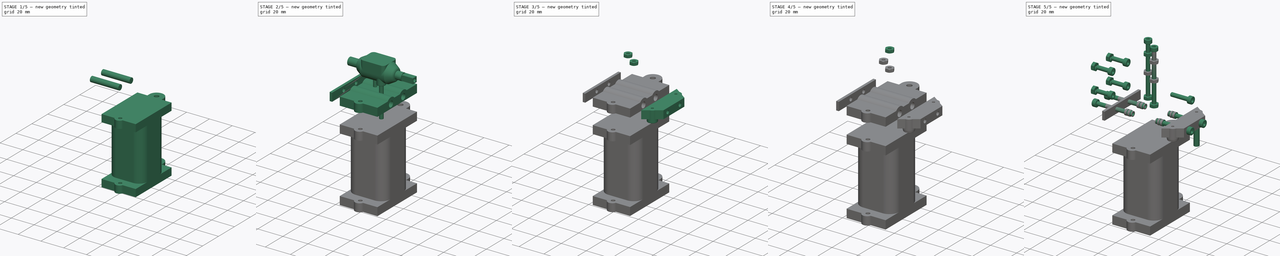
[diagram: build sequence overview — one tinted view per stage of 5, left to right]
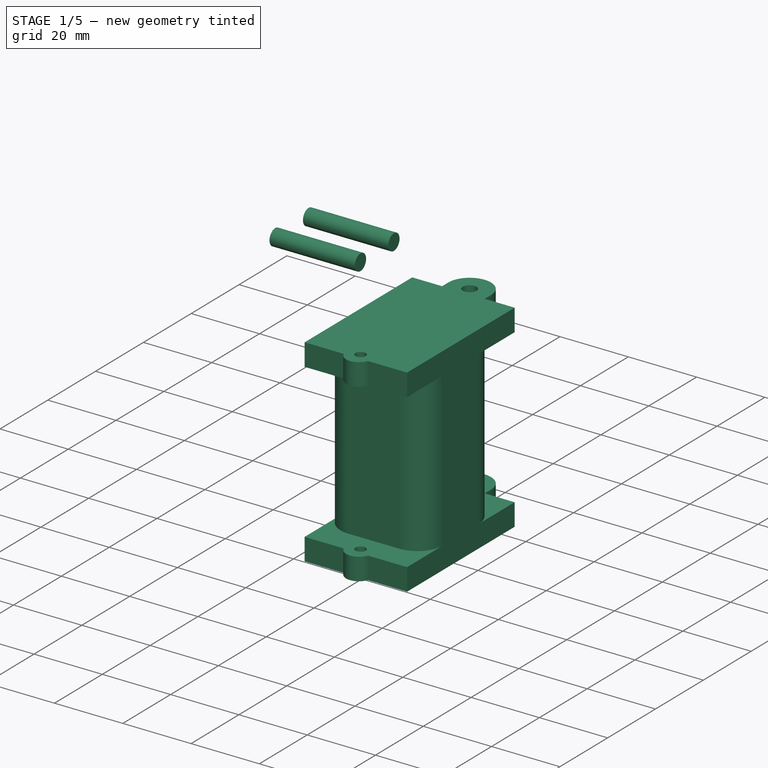
[diagram: stage 1 of 5 — iso view after this stage's code; geometry added in this stage tinted green]
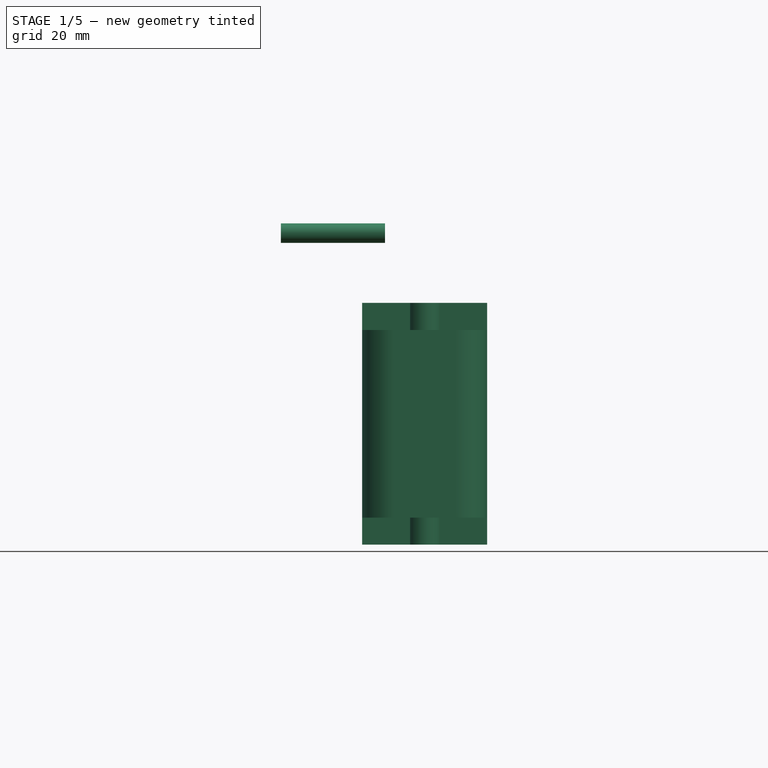
[diagram: stage 1 of 5 — front view after this stage's code; geometry added in this stage tinted green]
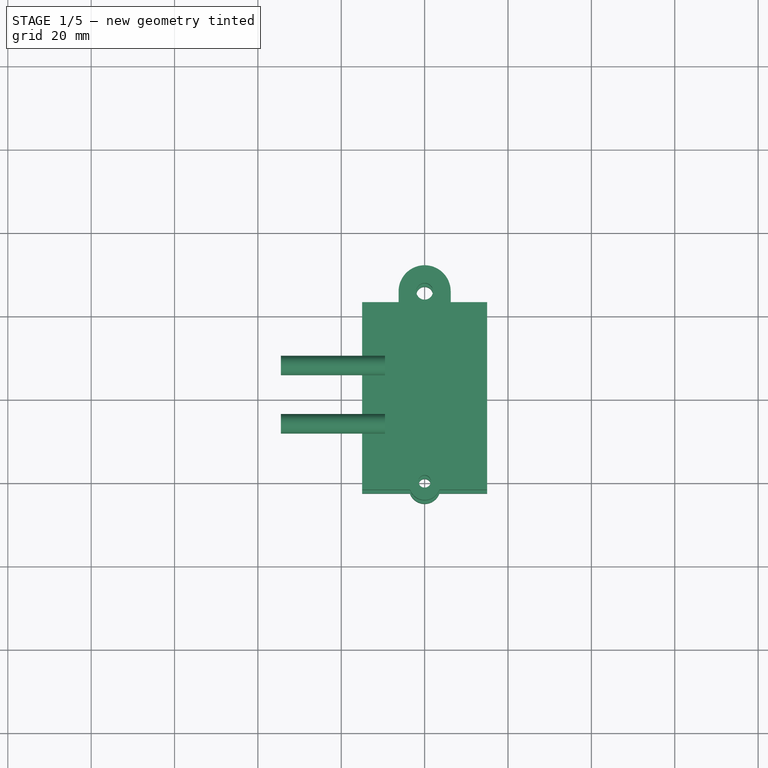
[diagram: stage 1 of 5 — top view after this stage's code; geometry added in this stage tinted green]
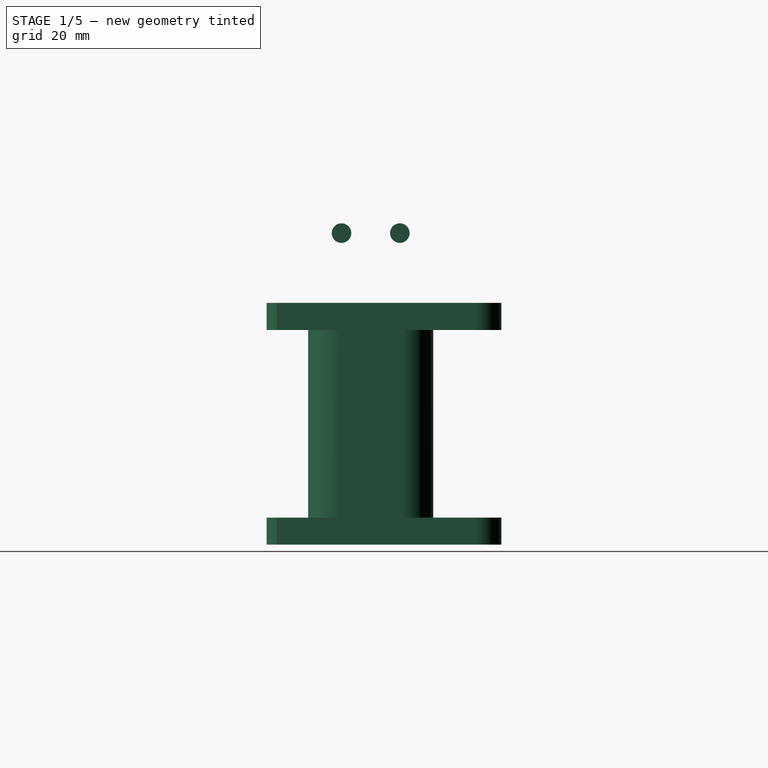
[diagram: stage 1 of 5 — right view after this stage's code; geometry added in this stage tinted green]
FCSTD DOCUMENT  (FreeCAD 0.20R29410 (Git))
Label: v2 boden actuator 
License: All rights reserved
LicenseURL: http://en.wikipedia.org/wiki/All_rights_reserved
objects: Sketcher::SketchObject×45, Part::Extrusion×39, Part::FeaturePython×31, Part::MultiFuse×17, Part::Cut×13, Part::Fillet×6, Part::Revolution×5, Part::Mirroring×4, App::DocumentObjectGroup×4, Part::Cylinder×1, Part::Feature×1
note: 162 computed .brp shape members not serialized (recipe doc carries the construction recipe); baked Part::Feature solids carry a one-line shape summary decoded from their .brp

FEATURE [Part::FeaturePython] Tube  label="686-2RS bearing"  # WARN: FeaturePython — macro-defined, semantics opaque (R4)
  AttacherType = Attacher::AttachEngine3D
  Height = 5
  InnerRadius = 3
  OuterRadius = 6.5
  Placement = pos=(-15,0,0) rot=(0,-1,0;1.5708rad)
FEATURE [Part::FeaturePython] Tube001  label="686-2RS bearing001"  # WARN: FeaturePython — macro-defined, semantics opaque (R4)
  AttacherType = Attacher::AttachEngine3D
  Height = 5
  InnerRadius = 3
  OuterRadius = 6.5
  Placement = pos=(20,0,0) rot=(0,-1,0;1.5708rad)
FEATURE [Sketcher::SketchObject] Sketch
  FullyConstrained = true
  MapMode = 45
  Placement = pos=(1.7e-15,1e-16,-1.3e-15) rot=(0.57735,0.57735,0.57735;2.0944rad)
  Support = -> [Tube001,Tube]
  sketch-geometry (7):
    g0: Circle CenterX=0 CenterY=0 CenterZ=0 NormalX=0 NormalY=0 NormalZ=1 AngleXU=0 Radius=6.5
    g1: ArcOfCircle CenterX=0 CenterY=0 CenterZ=0 NormalX=0 NormalY=0 NormalZ=1 AngleXU=0 Radius=10 StartAngle=0 EndAngle=3.14159
    g2: LineSegment StartX=-10 StartY=1.2e-15 StartZ=0 EndX=-10 EndY=-10 EndZ=0
    g3: LineSegment StartX=-15 StartY=-15 StartZ=0 EndX=15 EndY=-15 EndZ=0
    g4: LineSegment StartX=10 StartY=0 StartZ=0 EndX=10 EndY=-10 EndZ=0
    g5: LineSegment StartX=-15 StartY=-15 StartZ=0 EndX=-10 EndY=-10 EndZ=0
    g6: LineSegment StartX=15 StartY=-15 StartZ=0 EndX=10 EndY=-10 EndZ=0
  constraints (20):
    c: Coincident(g0,g-1)
    c: Diameter(g0) = 13
    c: Coincident(g1,g0)
    c: PointOnObject(g1,g-1)
    c: PointOnObject(g1,g-1)
    c: Coincident(g2,g1)
    c: Vertical(g2)
    c: Horizontal(g3)
    c: Coincident(g4,g1)
    c: Vertical(g4)
    c: Diameter(g1) = 20
    c: DistanceY(g3) = -15
    c: Coincident(g5,g3)
    c: Coincident(g5,g2)
    c: Coincident(g6,g3)
    c: Coincident(g6,g4)
    c: Equal(g6,g5)
    c: Angle(g3,g5) = 0.785398
    c: DistanceY(g5,g5) = 5
    c: DistanceY(g6,g6) = 5
FEATURE [Part::Extrusion] Extrude
  Base = -> Sketch
  Dir = (1,0,0)
  DirMode = 2
  FaceMakerClass = Part::FaceMakerBullseye
  LengthFwd = 7.5
  LengthRev = 0
  Placement = pos=(15,0,0) rot=(0,0,1;0rad)
  Solid = true
  Symmetric = false
FEATURE [Sketcher::SketchObject] Sketch001
  FullyConstrained = true
  MapMode = 45
  Placement = pos=(1.7e-15,1e-16,-1.3e-15) rot=(0.57735,0.57735,0.57735;2.0944rad)
  Support = -> [Tube001,Tube]
  sketch-geometry (7):
    g0: Circle CenterX=0 CenterY=0 CenterZ=0 NormalX=0 NormalY=0 NormalZ=1 AngleXU=0 Radius=6.5
    g1: ArcOfCircle CenterX=0 CenterY=0 CenterZ=0 NormalX=0 NormalY=0 NormalZ=1 AngleXU=0 Radius=10 StartAngle=0 EndAngle=3.14159
    g2: LineSegment StartX=-10 StartY=1.2e-15 StartZ=0 EndX=-10 EndY=-10 EndZ=0
    g3: LineSegment StartX=-15 StartY=-15 StartZ=0 EndX=15 EndY=-15 EndZ=0
    g4: LineSegment StartX=10 StartY=0 StartZ=0 EndX=10 EndY=-10 EndZ=0
    g5: LineSegment StartX=-15 StartY=-15 StartZ=0 EndX=-10 EndY=-10 EndZ=0
    g6: LineSegment StartX=10 StartY=-10 StartZ=0 EndX=15 EndY=-15 EndZ=0
  constraints (20):
    c: Coincident(g0,g-1)
    c: Diameter(g0) = 13
    c: Coincident(g1,g0)
    c: PointOnObject(g1,g-1)
    c: PointOnObject(g1,g-1)
    c: Coincident(g2,g1)
    c: Vertical(g2)
    c: Horizontal(g3)
    c: Coincident(g4,g1)
    c: Vertical(g4)
    c: Diameter(g1) = 20
    c: DistanceY(g3) = -15
    c: Coincident(g5,g3)
    c: Coincident(g5,g2)
    c: Coincident(g6,g4)
    c: Coincident(g6,g3)
    c: Equal(g6,g5)
    c: Angle(g3,g5) = 0.785398
    c: Angle(g6,g3) = 0.785398
    c: DistanceY(g6,g6) = 5
FEATURE [Part::Extrusion] Extrude001
  Base = -> Sketch001
  Dir = (1,0,0)
  DirMode = 2
  FaceMakerClass = Part::FaceMakerBullseye
  LengthFwd = 0
  LengthRev = 7.5
  Placement = pos=(-15,0,0) rot=(0,0,1;0rad)
  Solid = true
  Symmetric = false
FEATURE [Part::FeaturePython] Tube002  # WARN: FeaturePython — macro-defined, semantics opaque (R4)
  AttacherType = Attacher::AttachEngine3D
  Height = 2.5
  InnerRadius = 5
  OuterRadius = 6.5
  Placement = pos=(20,0,0) rot=(0,1,0;1.5708rad)
FEATURE [Part::FeaturePython] Tube003  # WARN: FeaturePython — macro-defined, semantics opaque (R4)
  AttacherType = Attacher::AttachEngine3D
  Height = 2.5
  InnerRadius = 5
  OuterRadius = 6.5
  Placement = pos=(-22.5,0,0) rot=(0,1,0;1.5708rad)
FEATURE [Part::MultiFuse] Fusion001
  Shapes = -> [Tube003,Extrude001]
FEATURE [Part::MultiFuse] Fusion002
  Shapes = -> [Tube002,Extrude]
FEATURE [Sketcher::SketchObject] Sketch014
  ExternalGeometry = -> [Fusion001]
  FullyConstrained = false
  MapMode = 5
  Placement = pos=(0,0,-15) rot=(1,0,0;3.14159rad)
  Support = -> [Fusion001]
  sketch-geometry (6):
    g0: LineSegment StartX=-22.5 StartY=20.3994 StartZ=0 EndX=-22.5 EndY=-20.3994 EndZ=0
    g1: LineSegment StartX=-15 StartY=-22.5 StartZ=0 EndX=-15 EndY=22.5 EndZ=0
    g2: LineSegment StartX=-15 StartY=-22.5 StartZ=0 EndX=-19.5 EndY=-22.5 EndZ=0
    g3: LineSegment StartX=-19.5 StartY=-22.5 StartZ=0 EndX=-22.5 EndY=-20.3994 EndZ=0
    g4: LineSegment StartX=-22.5 StartY=20.3994 StartZ=0 EndX=-19.5 EndY=22.5 EndZ=0
    g5: LineSegment StartX=-15 StartY=22.5 StartZ=0 EndX=-19.5 EndY=22.5 EndZ=0
  constraints (17):
    c: PointOnObject(g0,g-5)
    c: Vertical(g0)
    c: PointOnObject(g1,g-6)
    c: Vertical(g1)
    c: PointOnObject(g-3,g1)
    c: DistanceY(g1,g-3) = 7.5
    c: PointOnObject(g-4,g0)
    c: DistanceY(g-4,g0) = 5.39938
    c: PointOnObject(g0,g-7)
    c: Coincident(g2,g1)
    c: Coincident(g2,g-7)
    c: Coincident(g3,g2)
    c: Coincident(g3,g0)
    c: Coincident(g4,g0)
    c: Coincident(g4,g-6)
    c: Coincident(g5,g1)
    c: Coincident(g4,g5)
FEATURE [Part::Extrusion] Extrude007
  Base = -> Sketch014
  Dir = (0,0,-1)
  DirMode = 2
  FaceMakerClass = Part::FaceMakerBullseye
  LengthFwd = 6.5
  LengthRev = 0
  Solid = true
  Symmetric = false
FEATURE [Sketcher::SketchObject] Sketch015
  ExternalGeometry = -> [Fusion001]
  FullyConstrained = false
  MapMode = 5
  Placement = pos=(0,0,-15) rot=(1,0,0;3.14159rad)
  Support = -> [Fusion001]
  sketch-geometry (6):
    g0: LineSegment StartX=-22.5 StartY=20.3994 StartZ=0 EndX=-22.5 EndY=-20.3994 EndZ=0
    g1: LineSegment StartX=-15 StartY=-22.5 StartZ=0 EndX=-15 EndY=22.5 EndZ=0
    g2: LineSegment StartX=-15 StartY=-22.5 StartZ=0 EndX=-19.5 EndY=-22.5 EndZ=0
    g3: LineSegment StartX=-19.5 StartY=-22.5 StartZ=0 EndX=-22.5 EndY=-20.3994 EndZ=0
    g4: LineSegment StartX=-22.5 StartY=20.3994 StartZ=0 EndX=-19.5 EndY=22.5 EndZ=0
    g5: LineSegment StartX=-15 StartY=22.5 StartZ=0 EndX=-19.5 EndY=22.5 EndZ=0
  constraints (17):
    c: PointOnObject(g0,g-5)
    c: Vertical(g0)
    c: PointOnObject(g1,g-6)
    c: Vertical(g1)
    c: PointOnObject(g-3,g1)
    c: DistanceY(g1,g-3) = 7.5
    c: PointOnObject(g-4,g0)
    c: DistanceY(g-4,g0) = 5.39938
    c: PointOnObject(g0,g-7)
    c: Coincident(g2,g1)
    c: Coincident(g2,g-7)
    c: Coincident(g3,g2)
    c: Coincident(g3,g0)
    c: Coincident(g4,g0)
    c: Coincident(g4,g-6)
    c: Coincident(g5,g1)
    c: Coincident(g4,g5)
FEATURE [Part::Extrusion] Extrude008
  Base = -> Sketch015
  Dir = (0,0,-1)
  DirMode = 2
  FaceMakerClass = Part::FaceMakerBullseye
  LengthFwd = 6.5
  LengthRev = 0
  Solid = true
  Symmetric = false
FEATURE [Part::Mirroring] Part__Mirroring  label="Extrude008 (Mirror #1)"
  Base = (0,0,0)
  Normal = (1,0,0)
  Source = -> Extrude008
FEATURE [Sketcher::SketchObject] Sketch023
  FullyConstrained = true
  MapMode = 5
  Placement = pos=(34.5,0,-8e-15) rot=(0.57735,0.57735,0.57735;2.0944rad)
  sketch-geometry (9):
    g0: LineSegment StartX=12 StartY=-21.5 StartZ=0 EndX=12 EndY=-15 EndZ=0
    g1: LineSegment StartX=12 StartY=-15 StartZ=0 EndX=-12 EndY=-15 EndZ=0
    g2: LineSegment StartX=-12 StartY=-15 StartZ=0 EndX=-12 EndY=-21.5 EndZ=0
    g3: LineSegment StartX=-12 StartY=-21.5 StartZ=0 EndX=12 EndY=-21.5 EndZ=0
    g4: GeomPoint X=0 Y=-18.25 Z=0
    g5: LineSegment StartX=0 StartY=-18.25 StartZ=0 EndX=-7 EndY=-18.25 EndZ=0
    g6: LineSegment StartX=0 StartY=-18.25 StartZ=0 EndX=7 EndY=-18.25 EndZ=0
    g7: Circle CenterX=-7 CenterY=-18.25 CenterZ=0 NormalX=0 NormalY=0 NormalZ=1 AngleXU=0 Radius=1.5
    g8: Circle CenterX=7 CenterY=-18.25 CenterZ=0 NormalX=0 NormalY=0 NormalZ=1 AngleXU=0 Radius=1.5
  constraints (23):
    c: Coincident(g0,g1)
    c: Coincident(g1,g2)
    c: Coincident(g2,g3)
    c: Coincident(g3,g0)
    c: Horizontal(g1)
    c: Horizontal(g3)
    c: Vertical(g0)
    c: Vertical(g2)
    c: Symmetric(g1,g0,g4)
    c: Coincident(g5,g4)
    c: Horizontal(g5)
    c: Coincident(g6,g4)
    c: Horizontal(g6)
    c: Coincident(g7,g5)
    c: Coincident(g8,g6)
    c: Equal(g6,g5)
    c: Equal(g7,g8)
    c: Diameter(g7) = 3
    c: DistanceX(g8,g0) = 5
    c: DistanceY(g0,g0) = 6.5
    c: PointOnObject(g4,g-2)
    c: DistanceY(g0) = -15
    c: DistanceX(g6,g6) = 7
FEATURE [Part::Extrusion] Extrude015
  Base = -> Sketch023
  Dir = (1,0,0)
  DirMode = 2
  FaceMakerClass = Part::FaceMakerBullseye
  LengthFwd = 0
  LengthRev = 100
  Solid = true
  Symmetric = false
FEATURE [Part::Cut] Cut004
  Base = -> Part__Mirroring
  Tool = -> Extrude015
FEATURE [Sketcher::SketchObject] Sketch024
  FullyConstrained = true
  MapMode = 5
  Placement = pos=(34.5,0,-8e-15) rot=(0.57735,0.57735,0.57735;2.0944rad)
  sketch-geometry (9):
    g0: LineSegment StartX=12 StartY=-21.5 StartZ=0 EndX=12 EndY=-15 EndZ=0
    g1: LineSegment StartX=12 StartY=-15 StartZ=0 EndX=-12 EndY=-15 EndZ=0
    g2: LineSegment StartX=-12 StartY=-15 StartZ=0 EndX=-12 EndY=-21.5 EndZ=0
    g3: LineSegment StartX=-12 StartY=-21.5 StartZ=0 EndX=12 EndY=-21.5 EndZ=0
    g4: GeomPoint X=0 Y=-18.25 Z=0
    g5: LineSegment StartX=0 StartY=-18.25 StartZ=0 EndX=-7 EndY=-18.25 EndZ=0
    g6: LineSegment StartX=0 StartY=-18.25 StartZ=0 EndX=7 EndY=-18.25 EndZ=0
    g7: Circle CenterX=-7 CenterY=-18.25 CenterZ=0 NormalX=0 NormalY=0 NormalZ=1 AngleXU=0 Radius=1.5
    g8: Circle CenterX=7 CenterY=-18.25 CenterZ=0 NormalX=0 NormalY=0 NormalZ=1 AngleXU=0 Radius=1.5
  constraints (23):
    c: Coincident(g0,g1)
    c: Coincident(g1,g2)
    c: Coincident(g2,g3)
    c: Coincident(g3,g0)
    c: Horizontal(g1)
    c: Horizontal(g3)
    c: Vertical(g0)
    c: Vertical(g2)
    c: Symmetric(g1,g0,g4)
    c: Coincident(g5,g4)
    c: Horizontal(g5)
    c: Coincident(g6,g4)
    c: Horizontal(g6)
    c: Coincident(g7,g5)
    c: Coincident(g8,g6)
    c: Equal(g6,g5)
    c: Equal(g7,g8)
    c: Diameter(g7) = 3
    c: DistanceX(g8,g0) = 5
    c: PointOnObject(g4,g-2)
    c: DistanceX(g6,g6) = 7
    c: DistanceY(g0,g0) = 6.5
    c: DistanceY(g0) = -15
FEATURE [Part::Extrusion] Extrude016
  Base = -> Sketch024
  Dir = (1,0,0)
  DirMode = 2
  FaceMakerClass = Part::FaceMakerBullseye
  LengthFwd = 0
  LengthRev = 100
  Solid = true
  Symmetric = false
FEATURE [Part::Cut] Cut005
  Base = -> Extrude007
  Tool = -> Extrude016
FEATURE [Part::MultiFuse] Fusion005  label="bearing holder bracket 002"
  Shapes = -> [Cut005,Fusion001]
FEATURE [Part::MultiFuse] Fusion006  label="bearing holder bracket 01"
  Shapes = -> [Cut004,Fusion002]
FEATURE [Part::Fillet] Fillet014  label="a4 turntable"
  Edges = 1 edges r=1: [Edge44]
  Placement = pos=(20,0,-130.787) rot=(0,0,1;0rad)
FEATURE [Sketcher::SketchObject] Sketch028
  FullyConstrained = true
  MapMode = 5
  Placement = pos=(34.5,0,-8e-15) rot=(0.57735,0.57735,0.57735;2.0944rad)
  sketch-geometry (9):
    g0: LineSegment StartX=11.9969 StartY=-21.5 StartZ=0 EndX=11.9969 EndY=-15 EndZ=0
    g1: LineSegment StartX=11.9969 StartY=-15 StartZ=0 EndX=-11.9969 EndY=-15 EndZ=0
    g2: LineSegment StartX=-11.9969 StartY=-15 StartZ=0 EndX=-11.9969 EndY=-21.5 EndZ=0
    g3: LineSegment StartX=-11.9969 StartY=-21.5 StartZ=0 EndX=11.9969 EndY=-21.5 EndZ=0
    g4: GeomPoint X=-1e-16 Y=-18.25 Z=0
    g5: LineSegment StartX=-1e-16 StartY=-18.25 StartZ=0 EndX=-6.99689 EndY=-18.25 EndZ=0
    g6: LineSegment StartX=-1e-16 StartY=-18.25 StartZ=0 EndX=6.99689 EndY=-18.25 EndZ=0
    g7: Circle CenterX=-6.99689 CenterY=-18.25 CenterZ=0 NormalX=0 NormalY=0 NormalZ=1 AngleXU=0 Radius=2.35
    g8: Circle CenterX=6.99689 CenterY=-18.25 CenterZ=0 NormalX=0 NormalY=0 NormalZ=1 AngleXU=0 Radius=2.35
  constraints (23):
    c: Coincident(g0,g1)
    c: Coincident(g1,g2)
    c: Coincident(g2,g3)
    c: Coincident(g3,g0)
    c: Horizontal(g1)
    c: Horizontal(g3)
    c: Vertical(g0)
    c: Vertical(g2)
    c: Symmetric(g1,g0,g4)
    c: Coincident(g5,g4)
    c: Horizontal(g5)
    c: Coincident(g6,g4)
    c: Horizontal(g6)
    c: Coincident(g7,g5)
    c: Coincident(g8,g6)
    c: Equal(g6,g5)
    c: Equal(g7,g8)
    c: Diameter(g7) = 4.7
    c: DistanceX(g8,g0) = 5
    c: DistanceX(g0) = 11.9969
    c: DistanceY(g0) = -15
    c: DistanceX(g2) = -11.9969
    c: DistanceY(g2) = -21.5
FEATURE [Part::Extrusion] Extrude020
  Base = -> Sketch028
  Dir = (1,0,0)
  DirMode = 2
  FaceMakerClass = Part::FaceMakerBullseye
  LengthFwd = 0
  LengthRev = 25
  Placement = pos=(-44,0,0) rot=(0,0,1;0rad)
  Solid = true
  Symmetric = false
FEATURE [Sketcher::SketchObject] Sketch049
  ExternalGeometry = -> [Fusion008]
  FullyConstrained = true
  MapMode = 5
  Placement = pos=(0,0,-21.499) rot=(1,0,0;3.14159rad)
  Support = -> [Fusion008]
FEATURE [App::DocumentObjectGroup] Group004  label="base"
  Group = -> [Fusion004,Fusion005,Fusion006,Fusion008,Fillet015,Fusion014,Cut014,Sketch048,Sketch049]
FEATURE [Sketcher::SketchObject] Sketch050
  ExternalGeometry = -> [Fillet014,Fusion005,Fusion006]
  FullyConstrained = true
  sketch-geometry (12):
    g0: LineSegment StartX=-15 StartY=22.5 StartZ=0 EndX=-6.25 EndY=22.5 EndZ=0
    g1: LineSegment StartX=15 StartY=22.5 StartZ=0 EndX=15 EndY=-22.5 EndZ=0
    g2: LineSegment StartX=15 StartY=-22.5 StartZ=0 EndX=3.5222 EndY=-22.5 EndZ=0
    g3: LineSegment StartX=-15 StartY=-22.5 StartZ=0 EndX=-15 EndY=22.5 EndZ=0
    g4: ArcOfCircle CenterX=0 CenterY=25.1004 CenterZ=0 NormalX=0 NormalY=0 NormalZ=1 AngleXU=0 Radius=6.25 StartAngle=0 EndAngle=3.14159
    g5: LineSegment StartX=-6.25 StartY=25.1004 StartZ=0 EndX=-6.25 EndY=22.5 EndZ=0
    g6: LineSegment StartX=6.25 StartY=25.1004 StartZ=0 EndX=6.25 EndY=22.5 EndZ=0
    g7: LineSegment StartX=6.25 StartY=22.5 StartZ=0 EndX=15 EndY=22.5 EndZ=0
    g8: Circle CenterX=0 CenterY=25.1004 CenterZ=0 NormalX=0 NormalY=0 NormalZ=1 AngleXU=0 Radius=2
    g9: Circle CenterX=0 CenterY=-20.5 CenterZ=0 NormalX=0 NormalY=0 NormalZ=1 AngleXU=0 Radius=1.5
    g10: ArcOfCircle CenterX=0 CenterY=-21.2129 CenterZ=0 NormalX=0 NormalY=0 NormalZ=1 AngleXU=0 Radius=3.75 StartAngle=3.49194 EndAngle=5.93284
    g11: LineSegment StartX=-3.5222 StartY=-22.5 StartZ=0 EndX=-15 EndY=-22.5 EndZ=0
  constraints (32):
    c: Coincident(g1,g2)
    c: Coincident(g3,g11)
    c: Horizontal(g2)
    c: Horizontal(g11)
    c: Horizontal(g0)
    c: Horizontal(g7)
    c: Vertical(g6)
    c: Vertical(g5)
    c: Vertical(g1)
    c: Vertical(g3)
    c: PointOnObject(g10,g-2)
    c: Coincident(g9,g-6)
    c: Diameter(g9) = 3
    c: PointOnObject(g10,g-5)
    c: Equal(g10,g-5)
    c: PointOnObject(g2,g11)
    c: Coincident(g2,g10)
    c: Equal(g2,g11)
    c: Coincident(g11,g10)
    c: Coincident(g1,g7)
    c: Diameter(g8) = 4
    c: Tangent(g4,g6) = 1.5708
    c: Coincident(g0,g5)
    c: Coincident(g7,g6)
    c: Equal(g6,g5)
    c: PointOnObject(g-4,g0)
    c: Coincident(g3,g0)
    c: Coincident(g-7,g3)
    c: Tangent(g4,g5) = -1.5708
    c: Equal(g-9,g4)
    c: Coincident(g4,g-9)
    c: Coincident(g4,g8)
FEATURE [Part::Extrusion] Extrude038
  Base = -> Sketch050
  Dir = (0,0,1)
  DirMode = 2
  FaceMakerClass = Part::FaceMakerBullseye
  LengthFwd = 0
  LengthRev = 6.5
  Placement = pos=(0,0,-34.999) rot=(0,0,1;0rad)
  Solid = true
  Symmetric = false
FEATURE [Sketcher::SketchObject] Sketch051
  ExternalGeometry = -> [Extrude038]
  FullyConstrained = true
  MapMode = 5
  Placement = pos=(0,0,-41.499) rot=(1,0,0;3.14159rad)
  Support = -> [Extrude038]
  sketch-geometry (15):
    g0: ArcOfCircle CenterX=-7.5 CenterY=7.5 CenterZ=0 NormalX=0 NormalY=0 NormalZ=1 AngleXU=0 Radius=7.5 StartAngle=1.5708 EndAngle=3.14159
    g1: LineSegment StartX=-7.5 StartY=15 StartZ=0 EndX=7.5 EndY=15 EndZ=0
    g2: ArcOfCircle CenterX=7.5 CenterY=7.5 CenterZ=0 NormalX=0 NormalY=0 NormalZ=1 AngleXU=0 Radius=7.5 StartAngle=2e-16 EndAngle=1.5708
    g3: LineSegment StartX=15 StartY=7.5 StartZ=0 EndX=15 EndY=-7.5 EndZ=0
    g4: ArcOfCircle CenterX=7.5 CenterY=-7.5 CenterZ=0 NormalX=0 NormalY=0 NormalZ=1 AngleXU=0 Radius=7.5 StartAngle=4.71239 EndAngle=6.28319
    g5: LineSegment StartX=7.5 StartY=-15 StartZ=0 EndX=-7.5 EndY=-15 EndZ=0
    g6: ArcOfCircle CenterX=-7.5 CenterY=-7.5 CenterZ=0 NormalX=0 NormalY=0 NormalZ=1 AngleXU=0 Radius=7.5 StartAngle=3.14159 EndAngle=4.71239
    g7: LineSegment StartX=-15 StartY=-7.5 StartZ=0 EndX=-15 EndY=7.5 EndZ=0
    g8: GeomPoint X=-15 Y=15 Z=0
    g9: GeomPoint X=15 Y=-15 Z=0
    g10: LineSegment StartX=-7.5 StartY=-7.5 StartZ=0 EndX=-7.5 EndY=7.5 EndZ=0
    g11: LineSegment StartX=-7.5 StartY=7.5 StartZ=0 EndX=7.5 EndY=7.5 EndZ=0
    g12: LineSegment StartX=7.5 StartY=7.5 StartZ=0 EndX=7.5 EndY=-7.5 EndZ=0
    g13: LineSegment StartX=7.5 StartY=-7.5 StartZ=0 EndX=-7.5 EndY=-7.5 EndZ=0
    g14: GeomPoint X=0 Y=0 Z=0
  constraints (34):
    c: Tangent(g0,g1) = 1.5708
    c: Tangent(g1,g2) = 1.5708
    c: Tangent(g2,g3) = 1.5708
    c: Tangent(g3,g4) = 1.5708
    c: Tangent(g4,g5) = 1.5708
    c: Tangent(g5,g6) = 1.5708
    c: Tangent(g6,g7) = 1.5708
    c: Tangent(g7,g0) = 1.5708
    c: Horizontal(g1)
    c: Horizontal(g5)
    c: Vertical(g3)
    c: Vertical(g7)
    c: Equal(g0,g2)
    c: Equal(g2,g4)
    c: Equal(g4,g6)
    c: PointOnObject(g8,g1)
    c: PointOnObject(g8,g7)
    c: PointOnObject(g9,g3)
    c: PointOnObject(g9,g5)
    c: PointOnObject(g8,g-3)
    c: Diameter(g4) = 15
    c: Equal(g3,g5)
    c: Coincident(g10,g11)
    c: Coincident(g11,g12)
    c: Coincident(g12,g13)
    c: Coincident(g13,g10)
    c: Horizontal(g11)
    c: Horizontal(g13)
    c: Vertical(g10)
    c: Vertical(g12)
    c: Symmetric(g11,g10,g14)
    c: Coincident(g14,g-1)
    c: Coincident(g11,g2)
    c: Coincident(g6,g10)
FEATURE [Part::Extrusion] Extrude039
  Base = -> Sketch051
  Dir = (0,0,-1)
  DirMode = 2
  FaceMakerClass = Part::FaceMakerBullseye
  LengthFwd = 45
  LengthRev = 0
  Solid = true
  Symmetric = false
FEATURE [Sketcher::SketchObject] Sketch052
  ExternalGeometry = -> [Fillet014,Fusion005,Fusion006]
  FullyConstrained = true
  sketch-geometry (12):
    g0: LineSegment StartX=-15 StartY=22.5 StartZ=0 EndX=-6.25 EndY=22.5 EndZ=0
    g1: LineSegment StartX=15 StartY=22.5 StartZ=0 EndX=15 EndY=-22.5 EndZ=0
    g2: LineSegment StartX=15 StartY=-22.5 StartZ=0 EndX=3.5222 EndY=-22.5 EndZ=0
    g3: LineSegment StartX=-15 StartY=-22.5 StartZ=0 EndX=-15 EndY=22.5 EndZ=0
    g4: ArcOfCircle CenterX=0 CenterY=25.1004 CenterZ=0 NormalX=0 NormalY=0 NormalZ=1 AngleXU=0 Radius=6.25 StartAngle=0 EndAngle=3.14159
    g5: LineSegment StartX=-6.25 StartY=25.1004 StartZ=0 EndX=-6.25 EndY=22.5 EndZ=0
    g6: LineSegment StartX=6.25 StartY=25.1004 StartZ=0 EndX=6.25 EndY=22.5 EndZ=0
    g7: LineSegment StartX=6.25 StartY=22.5 StartZ=0 EndX=15 EndY=22.5 EndZ=0
    g8: Circle CenterX=0 CenterY=25.1004 CenterZ=0 NormalX=0 NormalY=0 NormalZ=1 AngleXU=0 Radius=2
    g9: Circle CenterX=0 CenterY=-20.5 CenterZ=0 NormalX=0 NormalY=0 NormalZ=1 AngleXU=0 Radius=1.5
    g10: ArcOfCircle CenterX=0 CenterY=-21.2129 CenterZ=0 NormalX=0 NormalY=0 NormalZ=1 AngleXU=0 Radius=3.75 StartAngle=3.49194 EndAngle=5.93284
    g11: LineSegment StartX=-3.5222 StartY=-22.5 StartZ=0 EndX=-15 EndY=-22.5 EndZ=0
  constraints (32):
    c: Coincident(g1,g2)
    c: Coincident(g3,g11)
    c: Horizontal(g2)
    c: Horizontal(g11)
    c: Horizontal(g0)
    c: Horizontal(g7)
    c: Vertical(g6)
    c: Vertical(g5)
    c: Vertical(g1)
    c: Vertical(g3)
    c: PointOnObject(g10,g-2)
    c: Coincident(g9,g-6)
    c: Diameter(g9) = 3
    c: PointOnObject(g10,g-5)
    c: Equal(g10,g-5)
    c: PointOnObject(g2,g11)
    c: Coincident(g2,g10)
    c: Equal(g2,g11)
    c: Coincident(g11,g10)
    c: Coincident(g1,g7)
    c: Diameter(g8) = 4
    c: Tangent(g4,g6) = 1.5708
    c: Coincident(g0,g5)
    c: Coincident(g7,g6)
    c: Equal(g6,g5)
    c: PointOnObject(g-4,g0)
    c: Coincident(g3,g0)
    c: Coincident(g-7,g3)
    c: Tangent(g4,g5) = -1.5708
    c: Equal(g-9,g4)
    c: Coincident(g4,g-9)
    c: Coincident(g4,g8)
FEATURE [Part::Extrusion] Extrude040
  Base = -> Sketch052
  Dir = (0,0,1)
  DirMode = 2
  FaceMakerClass = Part::FaceMakerBullseye
  LengthFwd = 0
  LengthRev = 6.5
  Placement = pos=(0,0,-86.499) rot=(0,0,1;0rad)
  Solid = true
  Symmetric = false
FEATURE [Part::MultiFuse] Fusion017  label="actuator base"
  Shapes = -> [Extrude040,Extrude038,Extrude039]
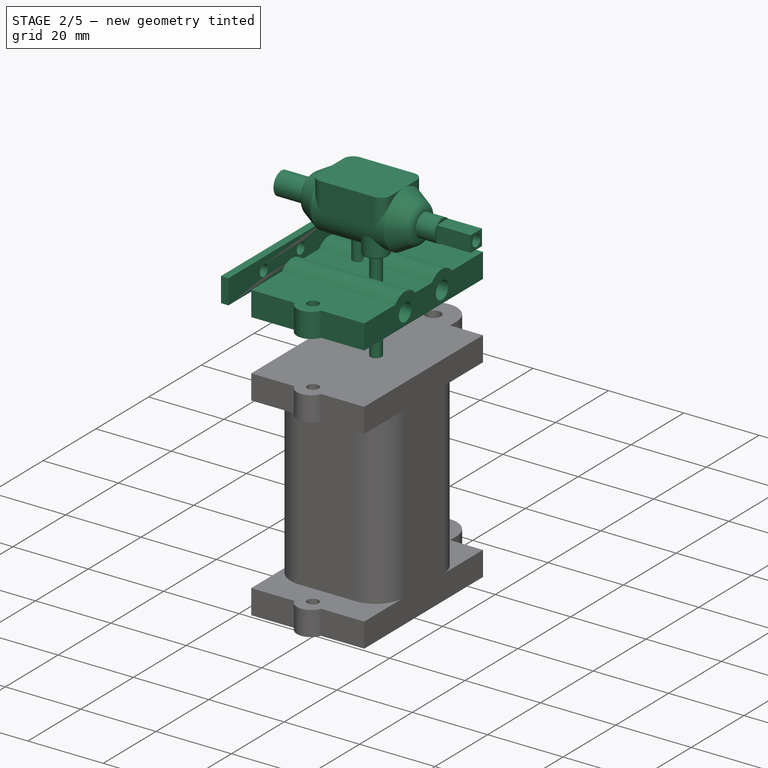
[diagram: stage 2 of 5 — iso view after this stage's code; geometry added in this stage tinted green]
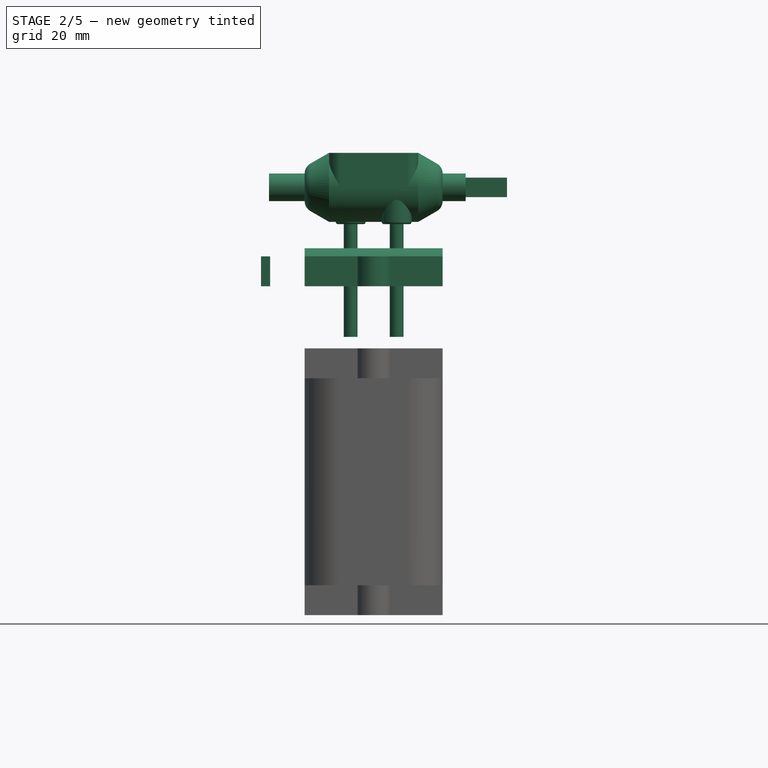
[diagram: stage 2 of 5 — front view after this stage's code; geometry added in this stage tinted green]
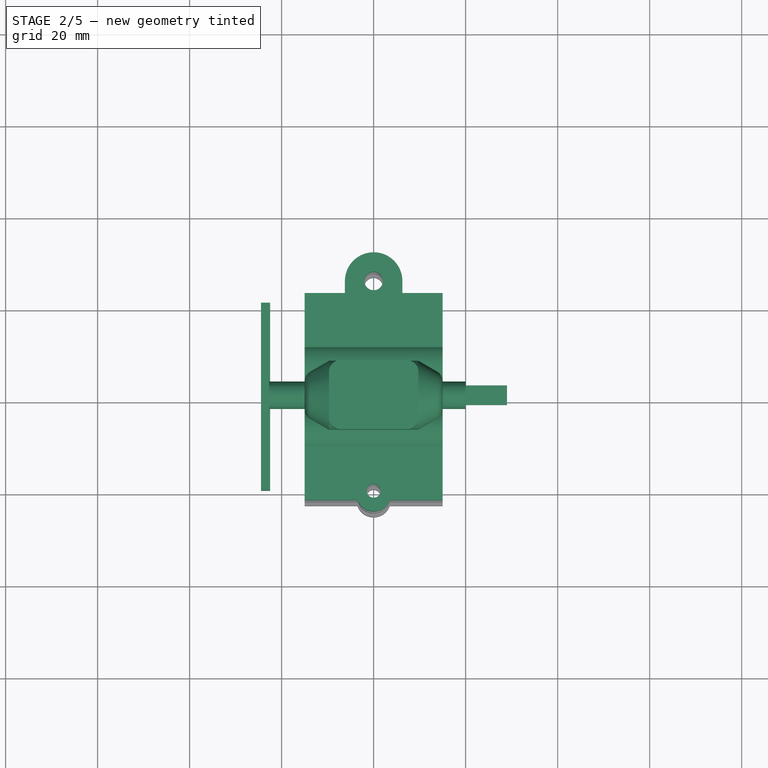
[diagram: stage 2 of 5 — top view after this stage's code; geometry added in this stage tinted green]
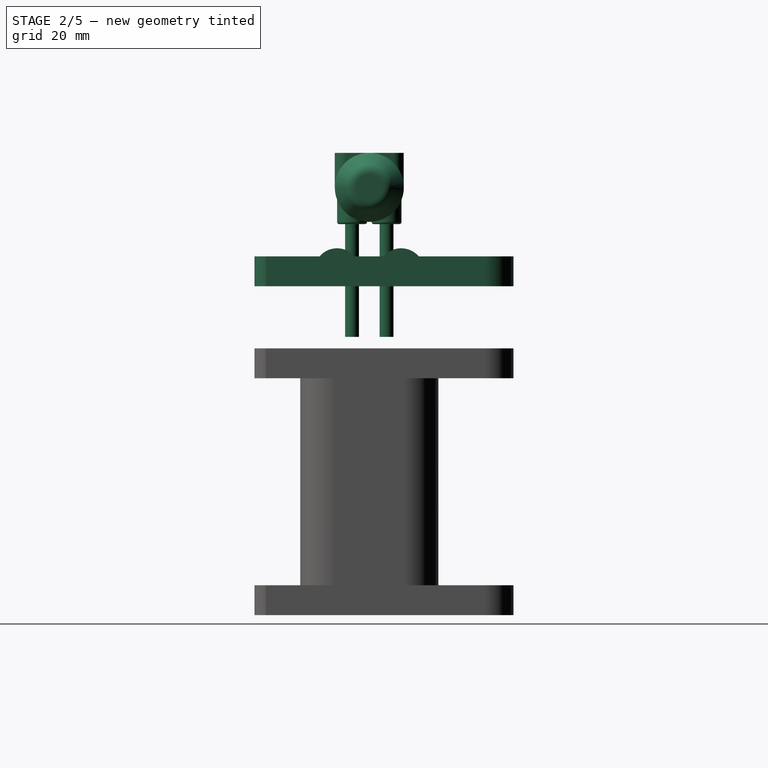
[diagram: stage 2 of 5 — right view after this stage's code; geometry added in this stage tinted green]
FEATURE [Part::Cylinder] Cylinder  label="lil magnet"
  Angle = 360
  AttacherType = Attacher::AttachEngine3D
  FirstAngle = 0
  Height = 1.9
  Placement = pos=(-23,0,0) rot=(0.57735,-0.57735,0.57735;4.18879rad)
  Radius = 2
  SecondAngle = 0
FEATURE [Part::Feature] Part__Feature  label="AS5600 v1"
  Placement = pos=(-27,0,0) rot=(0,0,-1;1.5708rad)
  shape: bbox 3.5 x 23 x 23 mm, 56 faces (baked)
FEATURE [Sketcher::SketchObject] Sketch012
  ExternalGeometry = -> [Part__Feature,Fusion001]
  FullyConstrained = true
  MapMode = 5
  Placement = pos=(-28.7,-4e-16,0) rot=(0.57735,-0.57735,-0.57735;2.0944rad)
  Support = -> [Part__Feature]
  sketch-geometry (17):
    g0: LineSegment StartX=-8.5 StartY=-8.5 StartZ=0 EndX=-8.5 EndY=8.5 EndZ=0
    g1: LineSegment StartX=-8.5 StartY=8.5 StartZ=0 EndX=8.5 EndY=8.5 EndZ=0
    g2: LineSegment StartX=8.5 StartY=8.5 StartZ=0 EndX=8.5 EndY=-8.5 EndZ=0
    g3: LineSegment StartX=8.5 StartY=-8.5 StartZ=0 EndX=-8.5 EndY=-8.5 EndZ=0
    g4: GeomPoint X=0 Y=0 Z=0
    g5: Circle CenterX=8.5 CenterY=8.5 CenterZ=0 NormalX=0 NormalY=0 NormalZ=1 AngleXU=0 Radius=1.5
    g6: Circle CenterX=8.5 CenterY=-8.5 CenterZ=0 NormalX=0 NormalY=0 NormalZ=1 AngleXU=0 Radius=1.5
    g7: Circle CenterX=-8.5 CenterY=-8.5 CenterZ=0 NormalX=0 NormalY=0 NormalZ=1 AngleXU=0 Radius=1.5
    g8: Circle CenterX=-8.5 CenterY=8.5 CenterZ=0 NormalX=0 NormalY=0 NormalZ=1 AngleXU=0 Radius=1.5
    g9: LineSegment StartX=-12.5 StartY=-10 StartZ=0 EndX=-12.5 EndY=9 EndZ=0
    g10: LineSegment StartX=-12.5 StartY=9 StartZ=0 EndX=-9 EndY=12.5 EndZ=0
    g11: LineSegment StartX=-9 StartY=12.5 StartZ=0 EndX=9 EndY=12.5 EndZ=0
    g12: LineSegment StartX=9 StartY=12.5 StartZ=0 EndX=12.5 EndY=9 EndZ=0
    g13: LineSegment StartX=12.5 StartY=9 StartZ=0 EndX=12.5 EndY=-10 EndZ=0
    g14: LineSegment StartX=12.5 StartY=-10 StartZ=0 EndX=17.5 EndY=-15 EndZ=0
    g15: LineSegment StartX=17.5 StartY=-15 StartZ=0 EndX=-17.5 EndY=-15 EndZ=0
    g16: LineSegment StartX=-17.5 StartY=-15 StartZ=0 EndX=-12.5 EndY=-10 EndZ=0
  constraints (43):
    c: Coincident(g0,g1)
    c: Coincident(g1,g2)
    c: Coincident(g2,g3)
    c: Coincident(g3,g0)
    c: Horizontal(g1)
    c: Horizontal(g3)
    c: Vertical(g0)
    c: Vertical(g2)
    c: Symmetric(g1,g0,g4)
    c: Coincident(g4,g-1)
    c: Coincident(g5,g1)
    c: Coincident(g6,g2)
    c: Coincident(g7,g0)
    c: Coincident(g8,g0)
    c: Equal(g5,g6)
    c: Equal(g5,g7)
    c: Equal(g5,g8)
    c: Diameter(g5) = 3
    c: Coincident(g-3,g8)
    c: Vertical(g9)
    c: Coincident(g10,g9)
    c: Coincident(g11,g10)
    c: Horizontal(g11)
    c: Coincident(g12,g11)
    c: Coincident(g13,g12)
    c: Coincident(g14,g13)
    c: Coincident(g15,g14)
    c: Horizontal(g15)
    c: Coincident(g16,g15)
    c: Coincident(g16,g9)
    c: Vertical(g13)
    c: Parallel(g14,g12)
    c: Parallel(g10,g16)
    c: Perpendicular(g14,g16)
    c: Angle(g14,g15) = 0.785398
    c: PointOnObject(g-4,g15)
    c: Equal(g16,g14)
    c: Equal(g10,g12)
    c: DistanceY(g-5,g11) = 1
    c: DistanceX(g-6,g12) = 1
    c: DistanceX(g9,g-7) = 1
    c: DistanceX(g10,g10) = 3.5
    c: DistanceX(g14,g14) = 5
FEATURE [Part::Extrusion] Extrude005
  Base = -> Sketch012
  Dir = (-1,-2e-16,-2e-16)
  DirMode = 2
  FaceMakerClass = Part::FaceMakerBullseye
  LengthFwd = 5.8
  LengthRev = 0
  Solid = true
  Symmetric = false
FEATURE [Sketcher::SketchObject] Sketch013
  ExternalGeometry = -> [Extrude005]
  FullyConstrained = false
  MapMode = 5
  Placement = pos=(3.3e-15,1.6e-15,-15) rot=(1,0,0;3.14159rad)
  Support = -> [Extrude005]
  sketch-geometry (8):
    g0: LineSegment StartX=-34.5 StartY=11.9969 StartZ=0 EndX=-28.7 EndY=16.0581 EndZ=0
    g1: LineSegment StartX=-28.7 StartY=16.0581 StartZ=0 EndX=-28.7 EndY=17.5 EndZ=0
    g2: LineSegment StartX=-28.7 StartY=17.5 StartZ=0 EndX=-34.5 EndY=17.5 EndZ=0
    g3: LineSegment StartX=-34.5 StartY=11.9969 StartZ=0 EndX=-34.5 EndY=17.5 EndZ=0
    g4: LineSegment StartX=-34.5 StartY=-11.9969 StartZ=0 EndX=-28.7 EndY=-16.0581 EndZ=0
    g5: LineSegment StartX=-28.7 StartY=-16.0581 StartZ=0 EndX=-28.7 EndY=-17.5 EndZ=0
    g6: LineSegment StartX=-28.7 StartY=-17.5 StartZ=0 EndX=-34.5 EndY=-17.5 EndZ=0
    g7: LineSegment StartX=-34.5 StartY=-11.9969 StartZ=0 EndX=-34.5 EndY=-17.5 EndZ=0
  constraints (20):
    c: Coincident(g0,g-5)
    c: PointOnObject(g0,g-4)
    c: Coincident(g1,g0)
    c: Coincident(g1,g-4)
    c: Coincident(g2,g1)
    c: Coincident(g2,g-3)
    c: Coincident(g3,g0)
    c: Coincident(g3,g2)
    c: Parallel(g0,g-5)
    c: Coincident(g5,g4)
    c: Coincident(g6,g5)
    c: Coincident(g7,g4)
    c: Coincident(g7,g6)
    c: Coincident(g4,g-6)
    c: PointOnObject(g4,g-6)
    c: PointOnObject(g4,g-4)
    c: Vertical(g5)
    c: Vertical(g7)
    c: Horizontal(g6)
    c: Equal(g7,g3)
FEATURE [Part::Extrusion] Extrude006
  Base = -> Sketch013
  Dir = (2e-16,1e-16,-1)
  DirMode = 2
  FaceMakerClass = Part::FaceMakerBullseye
  LengthFwd = 0
  LengthRev = 50
  Solid = true
  Symmetric = false
FEATURE [Part::Cut] Cut001
  Base = -> Extrude005
  Tool = -> Extrude006
FEATURE [Sketcher::SketchObject] Sketch016
  FullyConstrained = true
  Placement = pos=(0,0,-15) rot=(1,0,0;3.14159rad)
  sketch-geometry (4):
    g0: LineSegment StartX=-22.5 StartY=20.3994 StartZ=0 EndX=-22.5 EndY=-20.3994 EndZ=0
    g1: LineSegment StartX=-34.5 StartY=-11.9969 StartZ=0 EndX=-34.5 EndY=11.9969 EndZ=0
    g2: LineSegment StartX=-34.5 StartY=11.9969 StartZ=0 EndX=-22.5 EndY=20.3994 EndZ=0
    g3: LineSegment StartX=-34.5 StartY=-11.9969 StartZ=0 EndX=-22.5 EndY=-20.3994 EndZ=0
  constraints (12):
    c: Coincident(g1,g3)
    c: Coincident(g1,g2)
    c: Coincident(g0,g3)
    c: Coincident(g0,g2)
    c: DistanceX(g1) = -34.5
    c: DistanceY(g1) = 11.9969
    c: Equal(g3,g2)
    c: Vertical(g1)
    c: DistanceX(g0) = -22.5
    c: DistanceY(g0) = 20.3994
    c: Vertical(g0)
    c: DistanceY(g0,g0) = 40.7988
FEATURE [Part::Extrusion] Extrude009
  Base = -> Sketch016
  Dir = (0,-1e-16,-1)
  DirMode = 2
  FaceMakerClass = Part::FaceMakerBullseye
  LengthFwd = 6.5
  LengthRev = 0
  Solid = true
  Symmetric = false
FEATURE [Sketcher::SketchObject] Sketch025
  FullyConstrained = true
  MapMode = 5
  Placement = pos=(34.5,0,-8e-15) rot=(0.57735,0.57735,0.57735;2.0944rad)
  sketch-geometry (9):
    g0: LineSegment StartX=12 StartY=-21.5 StartZ=0 EndX=12 EndY=-15 EndZ=0
    g1: LineSegment StartX=12 StartY=-15 StartZ=0 EndX=-12 EndY=-15 EndZ=0
    g2: LineSegment StartX=-12 StartY=-15 StartZ=0 EndX=-12 EndY=-21.5 EndZ=0
    g3: LineSegment StartX=-12 StartY=-21.5 StartZ=0 EndX=12 EndY=-21.5 EndZ=0
    g4: GeomPoint X=0 Y=-18.25 Z=0
    g5: LineSegment StartX=0 StartY=-18.25 StartZ=0 EndX=-7 EndY=-18.25 EndZ=0
    g6: LineSegment StartX=0 StartY=-18.25 StartZ=0 EndX=7 EndY=-18.25 EndZ=0
    g7: Circle CenterX=-7 CenterY=-18.25 CenterZ=0 NormalX=0 NormalY=0 NormalZ=1 AngleXU=0 Radius=1.5
    g8: Circle CenterX=7 CenterY=-18.25 CenterZ=0 NormalX=0 NormalY=0 NormalZ=1 AngleXU=0 Radius=1.5
  constraints (23):
    c: Coincident(g0,g1)
    c: Coincident(g1,g2)
    c: Coincident(g2,g3)
    c: Coincident(g3,g0)
    c: Horizontal(g1)
    c: Horizontal(g3)
    c: Vertical(g0)
    c: Vertical(g2)
    c: Symmetric(g1,g0,g4)
    c: Coincident(g5,g4)
    c: Horizontal(g5)
    c: Coincident(g6,g4)
    c: Horizontal(g6)
    c: Coincident(g7,g5)
    c: Coincident(g8,g6)
    c: Equal(g6,g5)
    c: Equal(g7,g8)
    c: Diameter(g7) = 3
    c: DistanceX(g8,g0) = 5
    c: PointOnObject(g4,g-2)
    c: DistanceX(g6,g6) = 7
    c: DistanceY(g0,g0) = 6.5
    c: DistanceY(g0) = -15
FEATURE [Part::Extrusion] Extrude017
  Base = -> Sketch025
  Dir = (1,0,0)
  DirMode = 2
  FaceMakerClass = Part::FaceMakerBullseye
  LengthFwd = 0
  LengthRev = 100
  Solid = true
  Symmetric = false
FEATURE [Part::Cut] Cut006
  Base = -> Extrude009
  Tool = -> Extrude017
FEATURE [Part::MultiFuse] Fusion004  label="encoder bracket"
  Placement = pos=(-3,0,0) rot=(0,0,1;0rad)
  Shapes = -> [Cut006,Cut001]
FEATURE [Sketcher::SketchObject] Sketch026
  FullyConstrained = true
  MapMode = 5
  Placement = pos=(34.5,0,-8e-15) rot=(0.57735,0.57735,0.57735;2.0944rad)
  sketch-geometry (9):
    g0: LineSegment StartX=11.9969 StartY=-21.5 StartZ=0 EndX=11.9969 EndY=-15 EndZ=0
    g1: LineSegment StartX=11.9969 StartY=-15 StartZ=0 EndX=-11.9969 EndY=-15 EndZ=0
    g2: LineSegment StartX=-11.9969 StartY=-15 StartZ=0 EndX=-11.9969 EndY=-21.5 EndZ=0
    g3: LineSegment StartX=-11.9969 StartY=-21.5 StartZ=0 EndX=11.9969 EndY=-21.5 EndZ=0
    g4: GeomPoint X=-1e-16 Y=-18.25 Z=0
    g5: LineSegment StartX=-1e-16 StartY=-18.25 StartZ=0 EndX=-6.99689 EndY=-18.25 EndZ=0
    g6: LineSegment StartX=-1e-16 StartY=-18.25 StartZ=0 EndX=6.99689 EndY=-18.25 EndZ=0
    g7: Circle CenterX=-6.99689 CenterY=-18.25 CenterZ=0 NormalX=0 NormalY=0 NormalZ=1 AngleXU=0 Radius=2.35
    g8: Circle CenterX=6.99689 CenterY=-18.25 CenterZ=0 NormalX=0 NormalY=0 NormalZ=1 AngleXU=0 Radius=2.35
  constraints (23):
    c: Coincident(g0,g1)
    c: Coincident(g1,g2)
    c: Coincident(g2,g3)
    c: Coincident(g3,g0)
    c: Horizontal(g1)
    c: Horizontal(g3)
    c: Vertical(g0)
    c: Vertical(g2)
    c: Symmetric(g1,g0,g4)
    c: Coincident(g5,g4)
    c: Horizontal(g5)
    c: Coincident(g6,g4)
    c: Horizontal(g6)
    c: Coincident(g7,g5)
    c: Coincident(g8,g6)
    c: Equal(g6,g5)
    c: Equal(g7,g8)
    c: Diameter(g7) = 4.7
    c: DistanceX(g8,g0) = 5
    c: DistanceX(g0) = 11.9969
    c: DistanceY(g0) = -15
    c: DistanceX(g2) = -11.9969
    c: DistanceY(g2) = -21.5
FEATURE [Part::Extrusion] Extrude018
  Base = -> Sketch026
  Dir = (1,0,0)
  DirMode = 2
  FaceMakerClass = Part::FaceMakerBullseye
  LengthFwd = 0
  LengthRev = 25
  Solid = true
  Symmetric = false
FEATURE [App::DocumentObjectGroup] Group  label="ref/bearings"
  Group = -> [Tube001,Tube,Cylinder,Part__Feature,Tube005,Tube004,Fillet014]
FEATURE [Sketcher::SketchObject] Sketch027
  ExternalGeometry = -> [Fillet014,Fusion005,Fusion006]
  FullyConstrained = true
  sketch-geometry (12):
    g0: LineSegment StartX=-15 StartY=22.5 StartZ=0 EndX=-6.25 EndY=22.5 EndZ=0
    g1: LineSegment StartX=15 StartY=22.5 StartZ=0 EndX=15 EndY=-22.5 EndZ=0
    g2: LineSegment StartX=15 StartY=-22.5 StartZ=0 EndX=3.5222 EndY=-22.5 EndZ=0
    g3: LineSegment StartX=-15 StartY=-22.5 StartZ=0 EndX=-15 EndY=22.5 EndZ=0
    g4: ArcOfCircle CenterX=0 CenterY=25.1004 CenterZ=0 NormalX=0 NormalY=0 NormalZ=1 AngleXU=0 Radius=6.25 StartAngle=0 EndAngle=3.14159
    g5: LineSegment StartX=-6.25 StartY=25.1004 StartZ=0 EndX=-6.25 EndY=22.5 EndZ=0
    g6: LineSegment StartX=6.25 StartY=25.1004 StartZ=0 EndX=6.25 EndY=22.5 EndZ=0
    g7: LineSegment StartX=6.25 StartY=22.5 StartZ=0 EndX=15 EndY=22.5 EndZ=0
    g8: Circle CenterX=0 CenterY=25.1004 CenterZ=0 NormalX=0 NormalY=0 NormalZ=1 AngleXU=0 Radius=2
    g9: Circle CenterX=0 CenterY=-20.5 CenterZ=0 NormalX=0 NormalY=0 NormalZ=1 AngleXU=0 Radius=1.5
    g10: ArcOfCircle CenterX=0 CenterY=-21.2129 CenterZ=0 NormalX=0 NormalY=0 NormalZ=1 AngleXU=0 Radius=3.75 StartAngle=3.49194 EndAngle=5.93284
    g11: LineSegment StartX=-3.5222 StartY=-22.5 StartZ=0 EndX=-15 EndY=-22.5 EndZ=0
  constraints (32):
    c: Coincident(g1,g2)
    c: Coincident(g3,g11)
    c: Horizontal(g2)
    c: Horizontal(g11)
    c: Horizontal(g0)
    c: Horizontal(g7)
    c: Vertical(g6)
    c: Vertical(g5)
    c: Vertical(g1)
    c: Vertical(g3)
    c: PointOnObject(g10,g-2)
    c: Coincident(g9,g-6)
    c: Diameter(g9) = 3
    c: PointOnObject(g10,g-5)
    c: Equal(g10,g-5)
    c: PointOnObject(g2,g11)
    c: Coincident(g2,g10)
    c: Equal(g2,g11)
    c: Coincident(g11,g10)
    c: Coincident(g1,g7)
    c: Diameter(g8) = 4
    c: Tangent(g4,g6) = 1.5708
    c: Coincident(g0,g5)
    c: Coincident(g7,g6)
    c: Equal(g6,g5)
    c: PointOnObject(g-4,g0)
    c: Coincident(g3,g0)
    c: Coincident(g-7,g3)
    c: Tangent(g4,g5) = -1.5708
    c: Equal(g-9,g4)
    c: Coincident(g4,g-9)
    c: Coincident(g4,g8)
FEATURE [Part::Extrusion] Extrude019
  Base = -> Sketch027
  Dir = (0,0,1)
  DirMode = 2
  FaceMakerClass = Part::FaceMakerBullseye
  LengthFwd = 0
  LengthRev = 6.5
  Placement = pos=(0,0,-14.999) rot=(0,0,1;0rad)
  Solid = true
  Symmetric = false
FEATURE [Sketcher::SketchObject] Sketch029
  ExternalGeometry = -> [Fusion004]
  FullyConstrained = false
  MapMode = 5
  Placement = pos=(-15,0,-14.999) rot=(0.57735,-0.57735,-0.57735;2.0944rad)
  Support = -> [Extrude019]
  sketch-geometry (9):
    g0: ArcOfCircle CenterX=-6.9336 CenterY=-3.251 CenterZ=0 NormalX=0 NormalY=0 NormalZ=1 AngleXU=0 Radius=5 StartAngle=0.707848 EndAngle=2.43375
    g1: LineSegment StartX=-10.7324 StartY=-9e-16 StartZ=0 EndX=-3.13478 EndY=-9e-16 EndZ=0
    g2: ArcOfCircle CenterX=6.99689 CenterY=-3.251 CenterZ=0 NormalX=0 NormalY=0 NormalZ=1 AngleXU=0 Radius=5 StartAngle=0.707848 EndAngle=2.43375
    g3: LineSegment StartX=10.7957 StartY=9e-16 StartZ=0 EndX=3.19807 EndY=9e-16 EndZ=0
    g4: LineSegment StartX=11.9969 StartY=-6.501 StartZ=0 EndX=11.9969 EndY=-0.001 EndZ=0
    g5: LineSegment StartX=11.9969 StartY=-0.001 StartZ=0 EndX=-11.9969 EndY=-0.001 EndZ=0
    g6: LineSegment StartX=-11.9969 StartY=-0.001 StartZ=0 EndX=-11.9969 EndY=-6.501 EndZ=0
    g7: LineSegment StartX=-11.9969 StartY=-6.501 StartZ=0 EndX=11.9969 EndY=-6.501 EndZ=0
    g8: GeomPoint X=0 Y=-3.251 Z=0
  constraints (24):
    c: Coincident(g1,g0)
    c: Coincident(g1,g0)
    c: Horizontal(g1)
    c: PointOnObject(g0,g-1)
    c: Coincident(g3,g2)
    c: Coincident(g3,g2)
    c: Horizontal(g3)
    c: PointOnObject(g2,g-1)
    c: Equal(g2,g0)
    c: Diameter(g2) = 10
    c: Coincident(g4,g5)
    c: Coincident(g5,g6)
    c: Coincident(g6,g7)
    c: Coincident(g7,g4)
    c: Horizontal(g5)
    c: Horizontal(g7)
    c: Vertical(g4)
    c: Vertical(g6)
    c: Symmetric(g5,g4,g8)
    c: PointOnObject(g8,g-2)
    c: Coincident(g5,g-3)
    c: PointOnObject(g-3,g7)
    c: DistanceY(g2,g8) = 0
    c: DistanceY(g8,g0) = 0
FEATURE [Part::Extrusion] Extrude021
  Base = -> Sketch029
  Dir = (-1,0,0)
  DirMode = 2
  FaceMakerClass = Part::FaceMakerBullseye
  LengthFwd = 0
  LengthRev = 30
  Solid = true
  Symmetric = false
FEATURE [Part::MultiFuse] Fusion007
  Shapes = -> [Extrude020,Extrude018]
FEATURE [Part::Cut] Cut007
  Base = -> Extrude019
  Tool = -> Fusion007
FEATURE [Part::MultiFuse] Fusion008  label="base plate w/ v1 robot arm mounting"
  Shapes = -> [Cut007,Extrude021]
FEATURE [Sketcher::SketchObject] Sketch030
  ExternalGeometry = -> [Tube002,Tube,Tube001,Cylinder]
  FullyConstrained = true
  sketch-geometry (27):
    g0: LineSegment StartX=-30 StartY=-30 StartZ=0 EndX=-30 EndY=30 EndZ=0
    g1: LineSegment StartX=30 StartY=30 StartZ=0 EndX=30 EndY=-30 EndZ=0
    g2: LineSegment StartX=30 StartY=-30 StartZ=0 EndX=-30 EndY=-30 EndZ=0
    g3: GeomPoint X=2e-16 Y=-9e-16 Z=0
    g4: GeomPoint X=-1.375 Y=1.5 Z=0
    g5: LineSegment StartX=-22.75 StartY=0 StartZ=0 EndX=-22.75 EndY=2.0001 EndZ=0
    g6: LineSegment StartX=-22.75 StartY=2.0001 StartZ=0 EndX=-22.75 EndY=3 EndZ=0
    g7: LineSegment StartX=-21 StartY=0 StartZ=0 EndX=-22.75 EndY=0 EndZ=0
    g8: LineSegment StartX=-22.75 StartY=2.0001 StartZ=0 EndX=-21 EndY=2.0001 EndZ=0
    g9: LineSegment StartX=-21 StartY=2.0001 StartZ=0 EndX=-21 EndY=0 EndZ=0
    g10: LineSegment StartX=-22.75 StartY=3 StartZ=0 EndX=-15 EndY=3 EndZ=0
    g11: LineSegment StartX=-15 StartY=3 StartZ=0 EndX=15 EndY=3 EndZ=0
    g12: LineSegment StartX=15 StartY=3 StartZ=0 EndX=20 EndY=3 EndZ=0
    g13: ArcOfCircle CenterX=-12.5 CenterY=3 CenterZ=0 NormalX=0 NormalY=0 NormalZ=1 AngleXU=0 Radius=2.5 StartAngle=2.0944 EndAngle=3.14159
    g14: ArcOfCircle CenterX=12.5 CenterY=3 CenterZ=0 NormalX=0 NormalY=0 NormalZ=1 AngleXU=0 Radius=2.5 StartAngle=0 EndAngle=1.0472
    g15: LineSegment StartX=-13.75 StartY=5.16506 StartZ=0 EndX=13.75 EndY=5.16506 EndZ=0
    g16: LineSegment StartX=-13.75 StartY=5.16506 StartZ=0 EndX=-9.70577 EndY=7.5 EndZ=0
    g17: LineSegment StartX=13.75 StartY=5.16506 StartZ=0 EndX=9.70577 EndY=7.5 EndZ=0
    g18: LineSegment StartX=-9.70577 StartY=7.5 StartZ=0 EndX=9.70577 EndY=7.5 EndZ=0
    g19: LineSegment StartX=-30 StartY=30 StartZ=0 EndX=30 EndY=30 EndZ=0
    g20: LineSegment StartX=15 StartY=0 StartZ=0 EndX=15 EndY=1.25 EndZ=0
    g21: LineSegment StartX=15 StartY=1.25 StartZ=0 EndX=20 EndY=1.25 EndZ=0
    g22: LineSegment StartX=15 StartY=0 StartZ=0 EndX=15 EndY=-1.25 EndZ=0
    g23: LineSegment StartX=20 StartY=0 StartZ=0 EndX=15 EndY=0 EndZ=0
    g24: LineSegment StartX=15 StartY=0 StartZ=0 EndX=-21 EndY=0 EndZ=0
    g25: LineSegment StartX=20 StartY=3 StartZ=0 EndX=20 EndY=1.25 EndZ=0
    g26: LineSegment StartX=20 StartY=1.25 StartZ=0 EndX=20 EndY=0 EndZ=0
  constraints (73):
    c: Coincident(g1,g2)
    c: Coincident(g2,g0)
    c: Horizontal(g2)
    c: Vertical(g0)
    c: Vertical(g1)
    c: Symmetric(g1,g0,g3)
    c: Coincident(g3,g-1)
    c: DistanceX(g0,g1) = 60
    c: Coincident(g26,g23)
    c: Coincident(g7,g5)
    c: Coincident(g6,g10)
    c: Coincident(g12,g25)
    c: Symmetric(g7,g25,g4)
    c: PointOnObject(g7,g-1)
    c: DistanceY(g5,g6) = 3
    c: DistanceX(g-8,g-4) = 1.1
    c: Coincident(g5,g6)
    c: Vertical(g5)
    c: Vertical(g6)
    c: Coincident(g24,g7)
    c: Horizontal(g7)
    c: Coincident(g8,g5)
    c: Horizontal(g8)
    c: Coincident(g9,g8)
    c: Coincident(g9,g24)
    c: Vertical(g9)
    c: DistanceX(g-8,g8) = 0.1
    c: DistanceY(g-8,g8) = 0.0001
    c: PointOnObject(g25,g-5)
    c: Coincident(g10,g11)
    c: Horizontal(g10)
    c: Coincident(g11,g12)
    c: Horizontal(g11)
    c: Horizontal(g12)
    c: PointOnObject(g10,g-7)
    c: PointOnObject(g13,g11)
    c: Coincident(g13,g10)
    c: PointOnObject(g14,g11)
    c: Coincident(g14,g12)
    c: Coincident(g15,g13)
    c: Horizontal(g15)
    c: Coincident(g14,g15)
    c: Tangent(g16,g13) = 1.5708
    c: Tangent(g17,g14) = -1.5708
    c: Coincident(g18,g16)
    c: Coincident(g18,g17)
    c: Horizontal(g18)
    c: DistanceY(g17) = 7.5
    c: Diameter(g14) = 5
    c: Coincident(g19,g0)
    c: Coincident(g19,g1)
    c: Horizontal(g19)
    c: Equal(g19,g1)
    c: PointOnObject(g12,g-6)
    c: DistanceX(g6,g-9) = -0.25
    c: Vertical(g20)
    c: Coincident(g21,g20)
    c: Horizontal(g21)
    c: Coincident(g22,g20)
    c: Vertical(g22)
    c: Equal(g20,g22)
    c: DistanceX(g21,g21) = 5
    c: DistanceY(g22,g20) = 2.5
    c: Coincident(g23,g24)
    c: Horizontal(g23)
    c: Horizontal(g24)
    c: Coincident(g25,g26)
    c: Vertical(g25)
    c: Vertical(g26)
    c: Coincident(g21,g25)
    c: Coincident(g20,g23)
    c: Angle(g17,g11) = 0.523599
    c: Angle(g11,g16) = 0.523599
FEATURE [Part::Revolution] Revolve002
  Angle = 360
  Axis = (1,0,0)
  Base = (0,0,0)
  FaceMakerClass = Part::FaceMakerBullseye
  Solid = true
  Source = -> Sketch030
  Symmetric = false
FEATURE [Sketcher::SketchObject] Sketch031
  ExternalGeometry = -> [Revolve002]
  FullyConstrained = true
  sketch-geometry (10):
    g0: ArcOfCircle CenterX=-7.20577 CenterY=5 CenterZ=0 NormalX=0 NormalY=0 NormalZ=1 AngleXU=0 Radius=2.5 StartAngle=1.5708 EndAngle=3.14159
    g1: LineSegment StartX=-7.20577 StartY=7.5 StartZ=0 EndX=7.20577 EndY=7.5 EndZ=0
    g2: ArcOfCircle CenterX=7.20577 CenterY=5 CenterZ=0 NormalX=0 NormalY=0 NormalZ=1 AngleXU=0 Radius=2.5 StartAngle=2e-16 EndAngle=1.5708
    g3: LineSegment StartX=9.70577 StartY=5 StartZ=0 EndX=9.70577 EndY=-5 EndZ=0
    g4: ArcOfCircle CenterX=7.20577 CenterY=-5 CenterZ=0 NormalX=0 NormalY=0 NormalZ=1 AngleXU=0 Radius=2.5 StartAngle=4.71239 EndAngle=6.28319
    g5: LineSegment StartX=7.20577 StartY=-7.5 StartZ=0 EndX=-7.20577 EndY=-7.5 EndZ=0
    g6: ArcOfCircle CenterX=-7.20577 CenterY=-5 CenterZ=0 NormalX=0 NormalY=0 NormalZ=1 AngleXU=0 Radius=2.5 StartAngle=3.14159 EndAngle=4.71239
    g7: LineSegment StartX=-9.70577 StartY=-5 StartZ=0 EndX=-9.70577 EndY=5 EndZ=0
    g8: GeomPoint X=-9.70577 Y=7.5 Z=0
    g9: GeomPoint X=9.70577 Y=-7.5 Z=0
  constraints (24):
    c: Tangent(g0,g1) = 1.5708
    c: Tangent(g1,g2) = 1.5708
    c: Tangent(g2,g3) = 1.5708
    c: Tangent(g3,g4) = 1.5708
    c: Tangent(g4,g5) = 1.5708
    c: Tangent(g5,g6) = 1.5708
    c: Tangent(g6,g7) = 1.5708
    c: Tangent(g7,g0) = 1.5708
    c: Horizontal(g1)
    c: Horizontal(g5)
    c: Vertical(g3)
    c: Vertical(g7)
    c: Equal(g0,g2)
    c: Equal(g2,g4)
    c: Equal(g4,g6)
    c: PointOnObject(g8,g1)
    c: PointOnObject(g8,g7)
    c: PointOnObject(g9,g3)
    c: PointOnObject(g9,g5)
    c: Diameter(g4) = 5
    c: PointOnObject(g2,g-4)
    c: PointOnObject(g0,g-3)
    c: PointOnObject(g-3,g1)
    c: PointOnObject(g-3,g5)
FEATURE [Part::Extrusion] Extrude022
  Base = -> Sketch031
  Dir = (0,0,1)
  DirMode = 2
  FaceMakerClass = Part::FaceMakerBullseye
  LengthFwd = 7.5
  LengthRev = 0
  Solid = true
  Symmetric = false
FEATURE [Sketcher::SketchObject] Sketch032
  ExternalGeometry = -> [Revolve002]
  FullyConstrained = true
  MapMode = 5
  Placement = pos=(20,0,0) rot=(0.57735,0.57735,0.57735;2.0944rad)
  Support = -> [Revolve002]
  sketch-geometry (6):
    g0: LineSegment StartX=-2.12132 StartY=-2.12132 StartZ=0 EndX=-2.12132 EndY=2.12132 EndZ=0
    g1: LineSegment StartX=-2.12132 StartY=2.12132 StartZ=0 EndX=2.12132 EndY=2.12132 EndZ=0
    g2: LineSegment StartX=2.12132 StartY=2.12132 StartZ=0 EndX=2.12132 EndY=-2.12132 EndZ=0
    g3: LineSegment StartX=2.12132 StartY=-2.12132 StartZ=0 EndX=-2.12132 EndY=-2.12132 EndZ=0
    g4: GeomPoint X=0 Y=0 Z=0
    g5: Circle CenterX=0 CenterY=0 CenterZ=0 NormalX=0 NormalY=0 NormalZ=1 AngleXU=0 Radius=1.5
  constraints (14):
    c: Coincident(g0,g1)
    c: Coincident(g1,g2)
    c: Coincident(g2,g3)
    c: Coincident(g3,g0)
    c: Horizontal(g1)
    c: Horizontal(g3)
    c: Vertical(g0)
    c: Vertical(g2)
    c: Symmetric(g1,g0,g4)
    c: Coincident(g4,g-1)
    c: Equal(g2,g1)
    c: PointOnObject(g1,g-3)
    c: Coincident(g5,g4)
    c: Diameter(g5) = 3
FEATURE [Part::Extrusion] Extrude023
  Base = -> Sketch032
  Dir = (1,0,0)
  DirMode = 2
  FaceMakerClass = Part::FaceMakerBullseye
  LengthFwd = 9
  LengthRev = 0
  Solid = true
  Symmetric = false
FEATURE [Part::MultiFuse] Fusion009  label="nya"
  Shapes = -> [Revolve002,Extrude022,Extrude023]
FEATURE [Sketcher::SketchObject] Sketch033
  ExternalGeometry = -> [Fusion009]
  FullyConstrained = true
  MapMode = 5
  Placement = pos=(0,0,7.5) rot=(0,0,1;0rad)
  Support = -> [Fusion009]
  sketch-geometry (7):
    g0: LineSegment StartX=5 StartY=-3.75 StartZ=0 EndX=5 EndY=3.75 EndZ=0
    g1: LineSegment StartX=5 StartY=3.75 StartZ=0 EndX=-5 EndY=3.75 EndZ=0
    g2: LineSegment StartX=-5 StartY=3.75 StartZ=0 EndX=-5 EndY=-3.75 EndZ=0
    g3: LineSegment StartX=-5 StartY=-3.75 StartZ=0 EndX=5 EndY=-3.75 EndZ=0
    g4: GeomPoint X=0 Y=0 Z=0
    g5: Circle CenterX=-5 CenterY=3.75 CenterZ=0 NormalX=0 NormalY=0 NormalZ=1 AngleXU=0 Radius=1.5
    g6: Circle CenterX=5 CenterY=-3.75 CenterZ=0 NormalX=0 NormalY=0 NormalZ=1 AngleXU=0 Radius=1.5
  constraints (16):
    c: Coincident(g0,g1)
    c: Coincident(g1,g2)
    c: Coincident(g2,g3)
    c: Coincident(g3,g0)
    c: Horizontal(g1)
    c: Horizontal(g3)
    c: Vertical(g0)
    c: Vertical(g2)
    c: Symmetric(g1,g0,g4)
    c: Coincident(g4,g-1)
    c: Coincident(g5,g1)
    c: Coincident(g6,g0)
    c: Equal(g6,g5)
    c: Diameter(g6) = 3
    c: DistanceY(g0,g0) = 7.5
    c: DistanceX(g1,g1) = 10
FEATURE [Part::Extrusion] Extrude024
  Base = -> Sketch033
  Dir = (0,0,1)
  DirMode = 2
  FaceMakerClass = Part::FaceMakerBullseye
  LengthFwd = 0
  LengthRev = 40
  Solid = true
  Symmetric = false
FEATURE [Sketcher::SketchObject] Sketch034
  ExternalGeometry = -> [Fusion009]
  FullyConstrained = true
  MapMode = 5
  Placement = pos=(0,0,7.5) rot=(0,0,1;0rad)
  Support = -> [Fusion009]
  sketch-geometry (7):
    g0: LineSegment StartX=5 StartY=-3.75 StartZ=0 EndX=5 EndY=3.75 EndZ=0
    g1: LineSegment StartX=5 StartY=3.75 StartZ=0 EndX=-5 EndY=3.75 EndZ=0
    g2: LineSegment StartX=-5 StartY=3.75 StartZ=0 EndX=-5 EndY=-3.75 EndZ=0
    g3: LineSegment StartX=-5 StartY=-3.75 StartZ=0 EndX=5 EndY=-3.75 EndZ=0
    g4: GeomPoint X=0 Y=0 Z=0
    g5: Circle CenterX=-5 CenterY=3.75 CenterZ=0 NormalX=0 NormalY=0 NormalZ=1 AngleXU=0 Radius=3.25
    g6: Circle CenterX=5 CenterY=-3.75 CenterZ=0 NormalX=0 NormalY=0 NormalZ=1 AngleXU=0 Radius=3.25
  constraints (16):
    c: Coincident(g0,g1)
    c: Coincident(g1,g2)
    c: Coincident(g2,g3)
    c: Coincident(g3,g0)
    c: Horizontal(g1)
    c: Horizontal(g3)
    c: Vertical(g0)
    c: Vertical(g2)
    c: Symmetric(g1,g0,g4)
    c: Coincident(g4,g-1)
    c: Coincident(g5,g1)
    c: Coincident(g6,g0)
    c: Equal(g6,g5)
    c: Diameter(g6) = 6.5
    c: DistanceY(g0,g0) = 7.5
    c: DistanceX(g1,g1) = 10
FEATURE [Part::Extrusion] Extrude025
  Base = -> Sketch034
  Dir = (0,0,1)
  DirMode = 2
  FaceMakerClass = Part::FaceMakerBullseye
  LengthFwd = 0
  LengthRev = 15.5
  Solid = true
  Symmetric = false
FEATURE [Part::Fillet] Fillet
  Base = -> Extrude025
  Edges = 2 edges r=0.5: [Edge2,Edge5]
FEATURE [Part::MultiFuse] Fusion010
  Shapes = -> [Fillet,Fusion009]
FEATURE [Sketcher::SketchObject] Sketch048
  ExternalGeometry = -> [Fusion005]
  FullyConstrained = true
  MapMode = 5
  Placement = pos=(-22.5,0,0) rot=(0.57735,-0.57735,-0.57735;2.0944rad)
  Support = -> [Fusion005]
  sketch-geometry (7):
    g0: LineSegment StartX=20.3994 StartY=-21.5 StartZ=0 EndX=20.3994 EndY=-15 EndZ=0
    g1: LineSegment StartX=20.3994 StartY=-15 StartZ=0 EndX=-20.3994 EndY=-15 EndZ=0
    g2: LineSegment StartX=-20.3994 StartY=-15 StartZ=0 EndX=-20.3994 EndY=-21.5 EndZ=0
    g3: LineSegment StartX=-20.3994 StartY=-21.5 StartZ=0 EndX=20.3994 EndY=-21.5 EndZ=0
    g4: GeomPoint X=0 Y=-18.25 Z=0
    g5: Circle CenterX=-7 CenterY=-18.25 CenterZ=0 NormalX=0 NormalY=0 NormalZ=1 AngleXU=0 Radius=1.5
    g6: Circle CenterX=7 CenterY=-18.25 CenterZ=0 NormalX=0 NormalY=0 NormalZ=1 AngleXU=0 Radius=1.5
  constraints (16):
    c: Coincident(g0,g1)
    c: Coincident(g1,g2)
    c: Coincident(g2,g3)
    c: Coincident(g3,g0)
    c: Horizontal(g1)
    c: Horizontal(g3)
    c: Vertical(g0)
    c: Vertical(g2)
    c: Symmetric(g1,g0,g4)
    c: PointOnObject(g4,g-2)
    c: PointOnObject(g1,g-3)
    c: Coincident(g2,g-4)
    c: Coincident(g5,g-5)
    c: Coincident(g6,g-6)
    c: Equal(g6,g5)
    c: Diameter(g6) = 3
FEATURE [Part::Extrusion] Extrude037  label="encoder spacer"
  Base = -> Sketch048
  Dir = (-1,0,0)
  DirMode = 2
  FaceMakerClass = Part::FaceMakerBullseye
  LengthFwd = 2
  LengthRev = 0
  Solid = true
  Symmetric = false
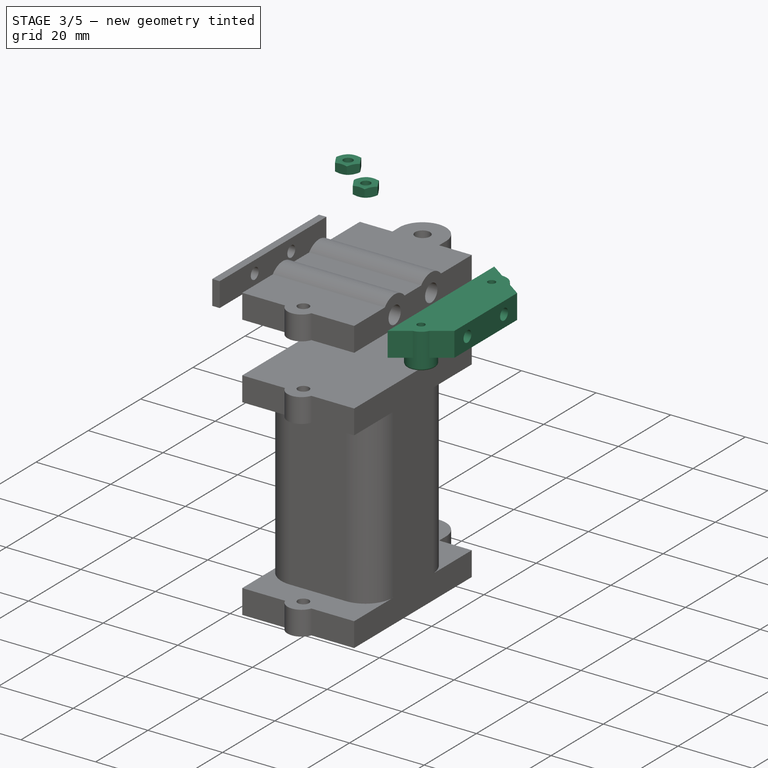
[diagram: stage 3 of 5 — iso view after this stage's code; geometry added in this stage tinted green]
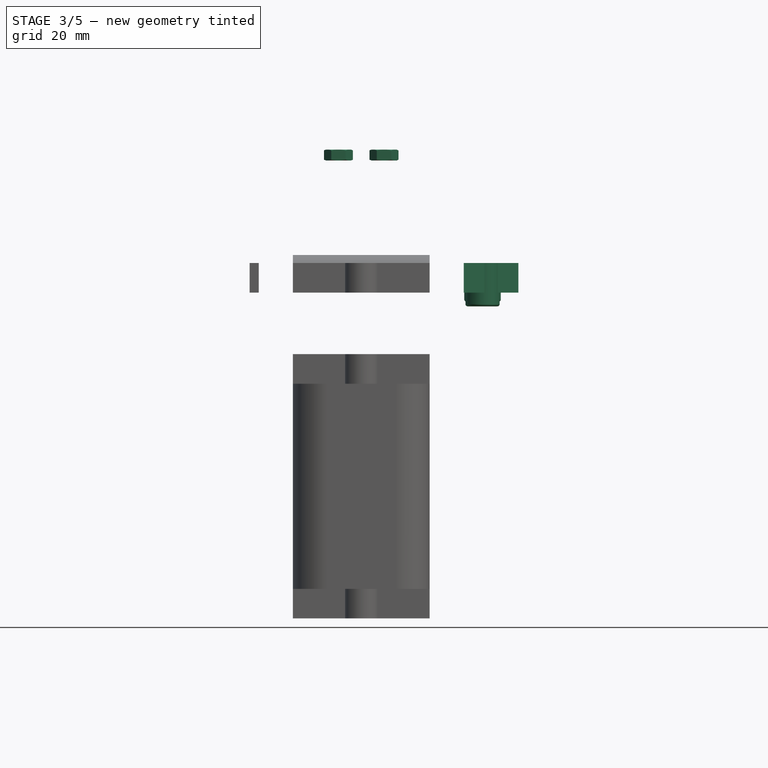
[diagram: stage 3 of 5 — front view after this stage's code; geometry added in this stage tinted green]
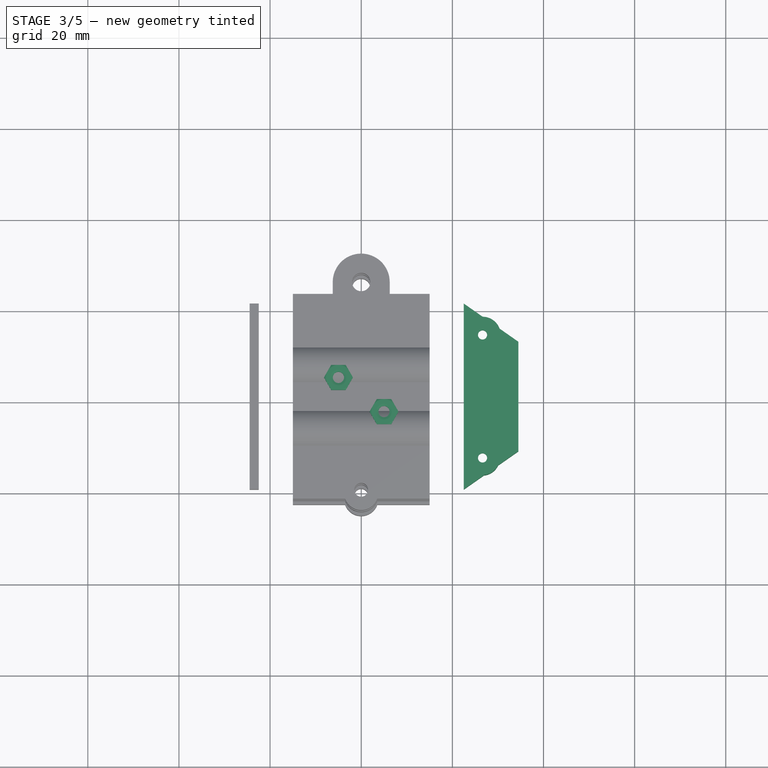
[diagram: stage 3 of 5 — top view after this stage's code; geometry added in this stage tinted green]
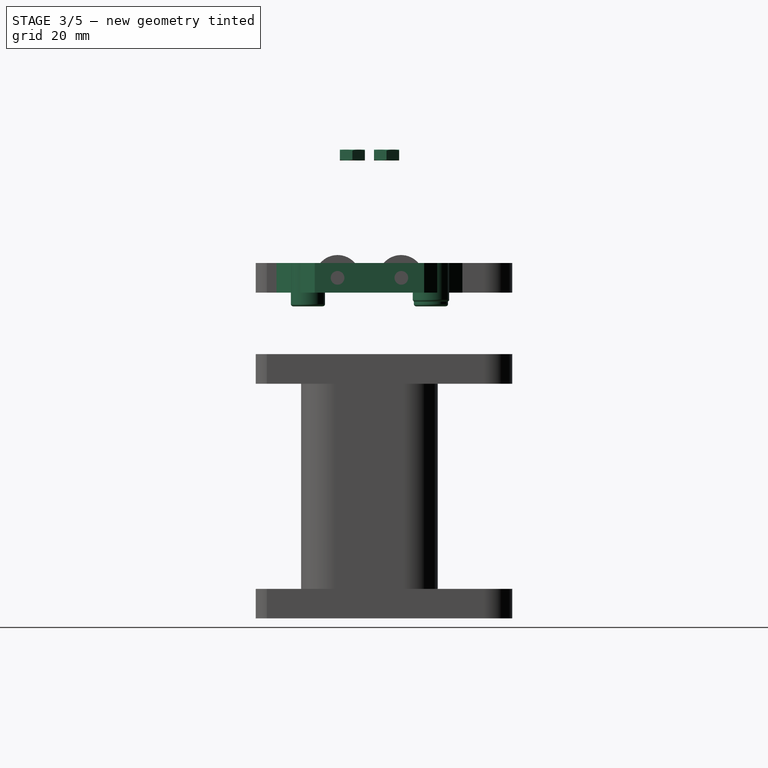
[diagram: stage 3 of 5 — right view after this stage's code; geometry added in this stage tinted green]
FEATURE [Sketcher::SketchObject] Sketch003
  ExternalGeometry = -> [Tube002,Tube,Tube001,Cylinder]
  FullyConstrained = true
  sketch-geometry (27):
    g0: LineSegment StartX=-30 StartY=-30 StartZ=0 EndX=-30 EndY=30 EndZ=0
    g1: LineSegment StartX=30 StartY=30 StartZ=0 EndX=30 EndY=-30 EndZ=0
    g2: LineSegment StartX=30 StartY=-30 StartZ=0 EndX=-30 EndY=-30 EndZ=0
    g3: GeomPoint X=2e-16 Y=-9e-16 Z=0
    g4: GeomPoint X=-1.375 Y=1.5 Z=0
    g5: LineSegment StartX=-22.75 StartY=0 StartZ=0 EndX=-22.75 EndY=2.0001 EndZ=0
    g6: LineSegment StartX=-22.75 StartY=2.0001 StartZ=0 EndX=-22.75 EndY=3 EndZ=0
    g7: LineSegment StartX=-21 StartY=0 StartZ=0 EndX=-22.75 EndY=0 EndZ=0
    g8: LineSegment StartX=-22.75 StartY=2.0001 StartZ=0 EndX=-21 EndY=2.0001 EndZ=0
    g9: LineSegment StartX=-21 StartY=2.0001 StartZ=0 EndX=-21 EndY=0 EndZ=0
    g10: LineSegment StartX=-22.75 StartY=3 StartZ=0 EndX=-15 EndY=3 EndZ=0
    g11: LineSegment StartX=-15 StartY=3 StartZ=0 EndX=15 EndY=3 EndZ=0
    g12: LineSegment StartX=15 StartY=3 StartZ=0 EndX=20 EndY=3 EndZ=0
    g13: ArcOfCircle CenterX=-12.5 CenterY=3 CenterZ=0 NormalX=0 NormalY=0 NormalZ=1 AngleXU=0 Radius=2.5 StartAngle=2.0944 EndAngle=3.14159
    g14: ArcOfCircle CenterX=12.5 CenterY=3 CenterZ=0 NormalX=0 NormalY=0 NormalZ=1 AngleXU=0 Radius=2.5 StartAngle=0 EndAngle=1.0472
    g15: LineSegment StartX=-13.75 StartY=5.16506 StartZ=0 EndX=13.75 EndY=5.16506 EndZ=0
    g16: LineSegment StartX=-13.75 StartY=5.16506 StartZ=0 EndX=-9.70577 EndY=7.5 EndZ=0
    g17: LineSegment StartX=13.75 StartY=5.16506 StartZ=0 EndX=9.70577 EndY=7.5 EndZ=0
    g18: LineSegment StartX=-9.70577 StartY=7.5 StartZ=0 EndX=9.70577 EndY=7.5 EndZ=0
    g19: LineSegment StartX=-30 StartY=30 StartZ=0 EndX=30 EndY=30 EndZ=0
    g20: LineSegment StartX=15 StartY=0 StartZ=0 EndX=15 EndY=1.25 EndZ=0
    g21: LineSegment StartX=15 StartY=1.25 StartZ=0 EndX=20 EndY=1.25 EndZ=0
    g22: LineSegment StartX=15 StartY=0 StartZ=0 EndX=15 EndY=-1.25 EndZ=0
    g23: LineSegment StartX=20 StartY=0 StartZ=0 EndX=15 EndY=0 EndZ=0
    g24: LineSegment StartX=15 StartY=0 StartZ=0 EndX=-21 EndY=0 EndZ=0
    g25: LineSegment StartX=20 StartY=3 StartZ=0 EndX=20 EndY=1.25 EndZ=0
    g26: LineSegment StartX=20 StartY=1.25 StartZ=0 EndX=20 EndY=0 EndZ=0
  constraints (73):
    c: Coincident(g1,g2)
    c: Coincident(g2,g0)
    c: Horizontal(g2)
    c: Vertical(g0)
    c: Vertical(g1)
    c: Symmetric(g1,g0,g3)
    c: Coincident(g3,g-1)
    c: DistanceX(g0,g1) = 60
    c: Coincident(g26,g23)
    c: Coincident(g7,g5)
    c: Coincident(g6,g10)
    c: Coincident(g12,g25)
    c: Symmetric(g7,g25,g4)
    c: PointOnObject(g7,g-1)
    c: DistanceY(g5,g6) = 3
    c: DistanceX(g-8,g-4) = 1.1
    c: Coincident(g5,g6)
    c: Vertical(g5)
    c: Vertical(g6)
    c: Coincident(g24,g7)
    c: Horizontal(g7)
    c: Coincident(g8,g5)
    c: Horizontal(g8)
    c: Coincident(g9,g8)
    c: Coincident(g9,g24)
    c: Vertical(g9)
    c: DistanceX(g-8,g8) = 0.1
    c: DistanceY(g-8,g8) = 0.0001
    c: PointOnObject(g25,g-5)
    c: Coincident(g10,g11)
    c: Horizontal(g10)
    c: Coincident(g11,g12)
    c: Horizontal(g11)
    c: Horizontal(g12)
    c: PointOnObject(g10,g-7)
    c: PointOnObject(g13,g11)
    c: Coincident(g13,g10)
    c: PointOnObject(g14,g11)
    c: Coincident(g14,g12)
    c: Coincident(g15,g13)
    c: Horizontal(g15)
    c: Coincident(g14,g15)
    c: Tangent(g16,g13) = 1.5708
    c: Tangent(g17,g14) = -1.5708
    c: Coincident(g18,g16)
    c: Coincident(g18,g17)
    c: Horizontal(g18)
    c: DistanceY(g17) = 7.5
    c: Diameter(g14) = 5
    c: Coincident(g19,g0)
    c: Coincident(g19,g1)
    c: Horizontal(g19)
    c: Equal(g19,g1)
    c: PointOnObject(g12,g-6)
    c: DistanceX(g6,g-9) = -0.25
    c: Vertical(g20)
    c: Coincident(g21,g20)
    c: Horizontal(g21)
    c: Coincident(g22,g20)
    c: Vertical(g22)
    c: Equal(g20,g22)
    c: DistanceX(g21,g21) = 5
    c: DistanceY(g22,g20) = 2.5
    c: Coincident(g23,g24)
    c: Horizontal(g23)
    c: Horizontal(g24)
    c: Coincident(g25,g26)
    c: Vertical(g25)
    c: Vertical(g26)
    c: Coincident(g21,g25)
    c: Coincident(g20,g23)
    c: Angle(g17,g11) = 0.523599
    c: Angle(g11,g16) = 0.523599
FEATURE [Part::Revolution] Revolve
  Angle = 360
  Axis = (1,0,0)
  Base = (0,0,0)
  FaceMakerClass = Part::FaceMakerBullseye
  Solid = true
  Source = -> Sketch003
  Symmetric = false
FEATURE [Sketcher::SketchObject] Sketch004
  ExternalGeometry = -> [Revolve]
  FullyConstrained = true
  sketch-geometry (10):
    g0: ArcOfCircle CenterX=-7.20577 CenterY=5 CenterZ=0 NormalX=0 NormalY=0 NormalZ=1 AngleXU=0 Radius=2.5 StartAngle=1.5708 EndAngle=3.14159
    g1: LineSegment StartX=-7.20577 StartY=7.5 StartZ=0 EndX=7.20577 EndY=7.5 EndZ=0
    g2: ArcOfCircle CenterX=7.20577 CenterY=5 CenterZ=0 NormalX=0 NormalY=0 NormalZ=1 AngleXU=0 Radius=2.5 StartAngle=2e-16 EndAngle=1.5708
    g3: LineSegment StartX=9.70577 StartY=5 StartZ=0 EndX=9.70577 EndY=-5 EndZ=0
    g4: ArcOfCircle CenterX=7.20577 CenterY=-5 CenterZ=0 NormalX=0 NormalY=0 NormalZ=1 AngleXU=0 Radius=2.5 StartAngle=4.71239 EndAngle=6.28319
    g5: LineSegment StartX=7.20577 StartY=-7.5 StartZ=0 EndX=-7.20577 EndY=-7.5 EndZ=0
    g6: ArcOfCircle CenterX=-7.20577 CenterY=-5 CenterZ=0 NormalX=0 NormalY=0 NormalZ=1 AngleXU=0 Radius=2.5 StartAngle=3.14159 EndAngle=4.71239
    g7: LineSegment StartX=-9.70577 StartY=-5 StartZ=0 EndX=-9.70577 EndY=5 EndZ=0
    g8: GeomPoint X=-9.70577 Y=7.5 Z=0
    g9: GeomPoint X=9.70577 Y=-7.5 Z=0
  constraints (24):
    c: Tangent(g0,g1) = 1.5708
    c: Tangent(g1,g2) = 1.5708
    c: Tangent(g2,g3) = 1.5708
    c: Tangent(g3,g4) = 1.5708
    c: Tangent(g4,g5) = 1.5708
    c: Tangent(g5,g6) = 1.5708
    c: Tangent(g6,g7) = 1.5708
    c: Tangent(g7,g0) = 1.5708
    c: Horizontal(g1)
    c: Horizontal(g5)
    c: Vertical(g3)
    c: Vertical(g7)
    c: Equal(g0,g2)
    c: Equal(g2,g4)
    c: Equal(g4,g6)
    c: PointOnObject(g8,g1)
    c: PointOnObject(g8,g7)
    c: PointOnObject(g9,g3)
    c: PointOnObject(g9,g5)
    c: Diameter(g4) = 5
    c: PointOnObject(g2,g-4)
    c: PointOnObject(g0,g-3)
    c: PointOnObject(g-3,g1)
    c: PointOnObject(g-3,g5)
FEATURE [Part::Extrusion] Extrude002
  Base = -> Sketch004
  Dir = (0,0,1)
  DirMode = 2
  FaceMakerClass = Part::FaceMakerBullseye
  LengthFwd = 7.5
  LengthRev = 0
  Solid = true
  Symmetric = false
FEATURE [Sketcher::SketchObject] Sketch008
  ExternalGeometry = -> [Revolve]
  FullyConstrained = true
  MapMode = 5
  Placement = pos=(20,0,0) rot=(0.57735,0.57735,0.57735;2.0944rad)
  Support = -> [Revolve]
  sketch-geometry (6):
    g0: LineSegment StartX=-2.12132 StartY=-2.12132 StartZ=0 EndX=-2.12132 EndY=2.12132 EndZ=0
    g1: LineSegment StartX=-2.12132 StartY=2.12132 StartZ=0 EndX=2.12132 EndY=2.12132 EndZ=0
    g2: LineSegment StartX=2.12132 StartY=2.12132 StartZ=0 EndX=2.12132 EndY=-2.12132 EndZ=0
    g3: LineSegment StartX=2.12132 StartY=-2.12132 StartZ=0 EndX=-2.12132 EndY=-2.12132 EndZ=0
    g4: GeomPoint X=0 Y=0 Z=0
    g5: Circle CenterX=0 CenterY=0 CenterZ=0 NormalX=0 NormalY=0 NormalZ=1 AngleXU=0 Radius=1.5
  constraints (14):
    c: Coincident(g0,g1)
    c: Coincident(g1,g2)
    c: Coincident(g2,g3)
    c: Coincident(g3,g0)
    c: Horizontal(g1)
    c: Horizontal(g3)
    c: Vertical(g0)
    c: Vertical(g2)
    c: Symmetric(g1,g0,g4)
    c: Coincident(g4,g-1)
    c: Equal(g2,g1)
    c: PointOnObject(g1,g-3)
    c: Coincident(g5,g4)
    c: Diameter(g5) = 3
FEATURE [Part::Extrusion] Extrude003
  Base = -> Sketch008
  Dir = (1,0,0)
  DirMode = 2
  FaceMakerClass = Part::FaceMakerBullseye
  LengthFwd = 9
  LengthRev = 0
  Solid = true
  Symmetric = false
FEATURE [Sketcher::SketchObject] Sketch007
  ExternalGeometry = -> [Tube002,Tube001,Extrude003]
  FullyConstrained = true
  Placement = pos=(0,0,0) rot=(1,0,0;1.5708rad)
  sketch-geometry (12):
    g0: LineSegment StartX=20 StartY=4.5 StartZ=0 EndX=20 EndY=0 EndZ=0
    g1: LineSegment StartX=20 StartY=0 StartZ=0 EndX=23.25 EndY=0 EndZ=0
    g2: LineSegment StartX=23.25 StartY=0 StartZ=0 EndX=23.25 EndY=4.5 EndZ=0
    g3: LineSegment StartX=23.25 StartY=4.5 StartZ=0 EndX=20 EndY=4.5 EndZ=0
    g4: LineSegment StartX=23.25 StartY=4.5 StartZ=0 EndX=23.25 EndY=12.875 EndZ=0
    g5: LineSegment StartX=23.875 StartY=13.5 StartZ=0 EndX=25.125 EndY=13.5 EndZ=0
    g6: ArcOfCircle CenterX=26.625 CenterY=13.5 CenterZ=0 NormalX=0 NormalY=0 NormalZ=1 AngleXU=0 Radius=1.5 StartAngle=3.14159 EndAngle=6.28319
    g7: LineSegment StartX=28.125 StartY=13.5 StartZ=0 EndX=29.375 EndY=13.5 EndZ=0
    g8: LineSegment StartX=30 StartY=12.875 StartZ=0 EndX=30 EndY=0 EndZ=0
    g9: LineSegment StartX=30 StartY=0 StartZ=0 EndX=23.25 EndY=0 EndZ=0
    g10: ArcOfCircle CenterX=23.875 CenterY=12.875 CenterZ=0 NormalX=0 NormalY=0 NormalZ=1 AngleXU=0 Radius=0.625 StartAngle=1.5708 EndAngle=3.14159
    g11: ArcOfCircle CenterX=29.375 CenterY=12.875 CenterZ=0 NormalX=0 NormalY=0 NormalZ=1 AngleXU=0 Radius=0.625 StartAngle=0 EndAngle=1.5708
  constraints (34):
    c: Coincident(g0,g1)
    c: Coincident(g0,g3)
    c: Coincident(g1,g9)
    c: Coincident(g3,g4)
    c: Coincident(g5,g6)
    c: Coincident(g6,g7)
    c: Coincident(g8,g9)
    c: PointOnObject(g8,g-1)
    c: Vertical(g8)
    c: DistanceY(g3,g-3) = 0.5
    c: DistanceX(g-3,g3) = 0.75
    c: Horizontal(g3)
    c: Horizontal(g1)
    c: Vertical(g0)
    c: Vertical(g2)
    c: Vertical(g4)
    c: Horizontal(g5)
    c: Horizontal(g7)
    c: Equal(g11,g10)
    c: Diameter(g11) = 1.25
    c: PointOnObject(g6,g5)
    c: PointOnObject(g6,g5)
    c: Diameter(g6) = 3
    c: Equal(g5,g7)
    c: DistanceY(g7) = 13.5
    c: Tangent(g5,g10) = 1.5708
    c: Tangent(g4,g10) = 1.5708
    c: Tangent(g7,g11) = 1.5708
    c: Tangent(g8,g11) = 1.5708
    c: PointOnObject(g0,g-4)
    c: Coincident(g1,g2)
    c: PointOnObject(g1,g-1)
    c: Coincident(g2,g3)
    c: DistanceX(g-5,g8) = 1
FEATURE [Part::Revolution] Revolve001
  Angle = 360
  Axis = (1,0,0)
  Base = (0,0,0)
  FaceMakerClass = Part::FaceMakerBullseye
  Solid = true
  Source = -> Sketch007
  Symmetric = false
FEATURE [Part::MultiFuse] Fusion  label="moving bracket"
  Shapes = -> [Revolve,Extrude002,Extrude003]
FEATURE [Sketcher::SketchObject] Sketch009
  ExternalGeometry = -> [Fusion]
  FullyConstrained = true
  MapMode = 5
  Placement = pos=(30,0,0) rot=(0.57735,0.57735,0.57735;2.0944rad)
  Support = -> [Revolve001]
  sketch-geometry (5):
    g0: LineSegment StartX=-2.12132 StartY=-2.12132 StartZ=0 EndX=-2.12132 EndY=2.12132 EndZ=0
    g1: LineSegment StartX=-2.12132 StartY=2.12132 StartZ=0 EndX=2.12132 EndY=2.12132 EndZ=0
    g2: LineSegment StartX=2.12132 StartY=2.12132 StartZ=0 EndX=2.12132 EndY=-2.12132 EndZ=0
    g3: LineSegment StartX=2.12132 StartY=-2.12132 StartZ=0 EndX=-2.12132 EndY=-2.12132 EndZ=0
    g4: GeomPoint X=0 Y=0 Z=0
  constraints (12):
    c: Coincident(g0,g1)
    c: Coincident(g1,g2)
    c: Coincident(g2,g3)
    c: Coincident(g3,g0)
    c: Horizontal(g1)
    c: Horizontal(g3)
    c: Vertical(g0)
    c: Vertical(g2)
    c: Symmetric(g1,g0,g4)
    c: Coincident(g4,g-3)
    c: PointOnObject(g1,g-3)
    c: Equal(g2,g1)
FEATURE [Part::Extrusion] Extrude004
  Base = -> Sketch009
  Dir = (1,0,0)
  DirMode = 2
  FaceMakerClass = Part::FaceMakerBullseye
  LengthFwd = 0
  LengthRev = 10
  Solid = true
  Symmetric = false
FEATURE [Part::Cut] Cut  label="driven wheel"
  Base = -> Revolve001
  Tool = -> Extrude004
FEATURE [Part::FeaturePython] Tube005  label="bike shift cable housing001"  # WARN: FeaturePython — macro-defined, semantics opaque (R4)
  AttacherType = Attacher::AttachEngine3D
  Height = 20
  InnerRadius = 1
  OuterRadius = 2
  Placement = pos=(26.625,-13.5,-19) rot=(1,0,0;3.14159rad)
FEATURE [Part::Cut] Cut008  label="moving bracket w/ m3 mounting holes"
  Base = -> Fusion010
  Tool = -> Extrude024
FEATURE [Sketcher::SketchObject] Sketch042
  FullyConstrained = false
  Placement = pos=(0,0,0) rot=(1,0,0;1.5708rad)
  sketch-geometry (13):
    g0: LineSegment StartX=26.625 StartY=-15 StartZ=0 EndX=26.625 EndY=-27 EndZ=0
    g1: LineSegment StartX=22.625 StartY=-15 StartZ=0 EndX=22.625 EndY=-23.5 EndZ=0
    g2: LineSegment StartX=22.625 StartY=-23.5 StartZ=0 EndX=24.025 EndY=-23.5 EndZ=0
    g3: LineSegment StartX=24.025 StartY=-23.5 StartZ=0 EndX=25.025 EndY=-21.3333 EndZ=0
    g4: LineSegment StartX=25.025 StartY=-21.3333 StartZ=0 EndX=24.025 EndY=-21.3333 EndZ=0
    g5: LineSegment StartX=24.025 StartY=-21.3333 StartZ=0 EndX=25.025 EndY=-19.1667 EndZ=0
    g6: LineSegment StartX=25.025 StartY=-19.1667 StartZ=0 EndX=24.025 EndY=-19.1667 EndZ=0
    g7: LineSegment StartX=24.025 StartY=-23.5 StartZ=0 EndX=24.025 EndY=-17 EndZ=0
    g8: LineSegment StartX=24.025 StartY=-19.1667 StartZ=0 EndX=25.025 EndY=-17 EndZ=0
    g9: LineSegment StartX=25.025 StartY=-17 StartZ=0 EndX=24.025 EndY=-17 EndZ=0
    g10: LineSegment StartX=25.025 StartY=-17 StartZ=0 EndX=25.625 EndY=-17 EndZ=0
    g11: LineSegment StartX=25.625 StartY=-17 StartZ=0 EndX=25.625 EndY=-15 EndZ=0
    g12: LineSegment StartX=22.625 StartY=-15 StartZ=0 EndX=25.625 EndY=-15 EndZ=0
  constraints (34):
    c: Vertical(g0)
    c: Vertical(g1)
    c: Coincident(g2,g1)
    c: Horizontal(g2)
    c: Coincident(g3,g2)
    c: Coincident(g4,g3)
    c: Horizontal(g4)
    c: Coincident(g5,g4)
    c: Equal(g3,g5)
    c: Coincident(g6,g5)
    c: Horizontal(g6)
    c: Equal(g4,g6)
    c: Coincident(g7,g2)
    c: Vertical(g7)
    c: PointOnObject(g4,g7)
    c: DistanceX(g1,g0) = 4
    c: DistanceX(g3,g0) = 1.6
    c: Coincident(g8,g6)
    c: Coincident(g9,g8)
    c: Horizontal(g9)
    c: Coincident(g9,g7)
    c: PointOnObject(g6,g7)
    c: Equal(g6,g9)
    c: Equal(g8,g5)
    c: Coincident(g10,g8)
    c: Horizontal(g10)
    c: Coincident(g11,g10)
    c: Vertical(g11)
    c: DistanceX(g11,g0) = 1
    c: DistanceY(g11,g11) = 2
    c: DistanceX(g4,g4) = 1
    c: Coincident(g12,g1)
    c: Coincident(g12,g11)
    c: DistanceX(g0) = 26.625
FEATURE [Part::Revolution] Revolve004
  Angle = 360
  Axis = (0,0,1)
  Base = (26.625,0,0)
  FaceMakerClass = Part::FaceMakerBullseye
  Placement = pos=(0,13.5,0) rot=(0,0,1;0rad)
  Solid = true
  Source = -> Sketch042
  Symmetric = false
FEATURE [Part::Fillet] Fillet018
  Base = -> Revolve004
  Edges = 1 edges r=0.5: [Edge2]
FEATURE [Sketcher::SketchObject] Sketch043
  ExternalGeometry = -> [Cut,Tube005]
  FullyConstrained = true
  MapMode = 5
  Placement = pos=(-5.9e-15,2e-15,-20) rot=(0,0,1;0rad)
  sketch-geometry (4):
    g0: Circle CenterX=26.625 CenterY=13.5 CenterZ=0 NormalX=0 NormalY=0 NormalZ=1 AngleXU=0 Radius=3.75
    g1: Circle CenterX=26.625 CenterY=13.5 CenterZ=0 NormalX=0 NormalY=0 NormalZ=1 AngleXU=0 Radius=1.5
    g2: Circle CenterX=26.625 CenterY=-13.5 CenterZ=0 NormalX=0 NormalY=0 NormalZ=1 AngleXU=0 Radius=3.75
    g3: Circle CenterX=26.625 CenterY=-13.5 CenterZ=0 NormalX=0 NormalY=0 NormalZ=1 AngleXU=0 Radius=1.5
  constraints (13):
    c: Diameter(g0) = 7.5
    c: DistanceY(g-4,g0) = 0
    c: Coincident(g1,g0)
    c: PointOnObject(g-4,g1)
    c: PointOnObject(g-3,g1)
    c: Diameter(g2) = 7.5
    c: Coincident(g3,g2)
    c: PointOnObject(g-4,g3)
    c: PointOnObject(g-3,g3)
    c: DistanceY(g2,g-3) = 0
    c: DistanceX(g0) = 26.625
    c: DistanceY(g0) = 13.5
    c: Diameter(g-5) = 4
FEATURE [Part::Extrusion] Extrude032
  Base = -> Sketch043
  Dir = (0,0,1)
  DirMode = 2
  FaceMakerClass = Part::FaceMakerBullseye
  LengthFwd = 5
  LengthRev = 4.5
  Solid = true
  Symmetric = false
FEATURE [Sketcher::SketchObject] Sketch044
  FullyConstrained = true
  MapMode = 5
  Placement = pos=(34.5,0,-8e-15) rot=(0.57735,0.57735,0.57735;2.0944rad)
  sketch-geometry (9):
    g0: LineSegment StartX=12 StartY=-21.5 StartZ=0 EndX=12 EndY=-15 EndZ=0
    g1: LineSegment StartX=12 StartY=-15 StartZ=0 EndX=-12 EndY=-15 EndZ=0
    g2: LineSegment StartX=-12 StartY=-15 StartZ=0 EndX=-12 EndY=-21.5 EndZ=0
    g3: LineSegment StartX=-12 StartY=-21.5 StartZ=0 EndX=12 EndY=-21.5 EndZ=0
    g4: GeomPoint X=0 Y=-18.25 Z=0
    g5: LineSegment StartX=0 StartY=-18.25 StartZ=0 EndX=-7 EndY=-18.25 EndZ=0
    g6: LineSegment StartX=0 StartY=-18.25 StartZ=0 EndX=7 EndY=-18.25 EndZ=0
    g7: Circle CenterX=-7 CenterY=-18.25 CenterZ=0 NormalX=0 NormalY=0 NormalZ=1 AngleXU=0 Radius=1.5
    g8: Circle CenterX=7 CenterY=-18.25 CenterZ=0 NormalX=0 NormalY=0 NormalZ=1 AngleXU=0 Radius=1.5
  constraints (23):
    c: Coincident(g0,g1)
    c: Coincident(g1,g2)
    c: Coincident(g2,g3)
    c: Coincident(g3,g0)
    c: Horizontal(g1)
    c: Horizontal(g3)
    c: Vertical(g0)
    c: Vertical(g2)
    c: Symmetric(g1,g0,g4)
    c: Coincident(g5,g4)
    c: Horizontal(g5)
    c: Coincident(g6,g4)
    c: Horizontal(g6)
    c: Coincident(g7,g5)
    c: Coincident(g8,g6)
    c: Equal(g6,g5)
    c: Equal(g7,g8)
    c: Diameter(g7) = 3
    c: DistanceX(g8,g0) = 5
    c: DistanceY(g0,g0) = 6.5
    c: PointOnObject(g4,g-2)
    c: DistanceX(g6,g6) = 7
    c: DistanceY(g0) = -15
FEATURE [Part::Extrusion] Extrude033
  Base = -> Sketch044
  Dir = (1,0,0)
  DirMode = 2
  FaceMakerClass = Part::FaceMakerBullseye
  LengthFwd = 0
  LengthRev = 100
  Solid = true
  Symmetric = false
FEATURE [Sketcher::SketchObject] Sketch045
  FullyConstrained = true
  Placement = pos=(0,0,-15) rot=(1,0,0;3.14159rad)
  sketch-geometry (4):
    g0: LineSegment StartX=-22.5 StartY=20.3994 StartZ=0 EndX=-22.5 EndY=-20.3994 EndZ=0
    g1: LineSegment StartX=-34.5 StartY=-11.9969 StartZ=0 EndX=-34.5 EndY=11.9969 EndZ=0
    g2: LineSegment StartX=-34.5 StartY=11.9969 StartZ=0 EndX=-22.5 EndY=20.3994 EndZ=0
    g3: LineSegment StartX=-34.5 StartY=-11.9969 StartZ=0 EndX=-22.5 EndY=-20.3994 EndZ=0
  constraints (12):
    c: Coincident(g1,g3)
    c: Coincident(g1,g2)
    c: Coincident(g0,g3)
    c: Coincident(g0,g2)
    c: DistanceX(g1) = -34.5
    c: DistanceY(g1) = 11.9969
    c: Equal(g3,g2)
    c: Vertical(g1)
    c: DistanceX(g0) = -22.5
    c: DistanceY(g0) = 20.3994
    c: Vertical(g0)
    c: DistanceY(g0,g0) = 40.7988
FEATURE [Part::Extrusion] Extrude034
  Base = -> Sketch045
  Dir = (0,0,-1)
  DirMode = 2
  FaceMakerClass = Part::FaceMakerBullseye
  LengthFwd = 6.5
  LengthRev = 0
  Solid = true
  Symmetric = false
FEATURE [Part::Mirroring] Part__Mirroring003  label="Extrude014 (Mirror #2)001"
  Base = (0,0,0)
  Normal = (1,0,0)
  Source = -> Extrude034
FEATURE [Sketcher::SketchObject] Sketch046
  ExternalGeometry = -> [Cut,Tube005]
  FullyConstrained = true
  MapMode = 5
  Placement = pos=(-5.9e-15,2e-15,-20) rot=(0,0,1;0rad)
  sketch-geometry (4):
    g0: Circle CenterX=26.625 CenterY=13.5 CenterZ=0 NormalX=0 NormalY=0 NormalZ=1 AngleXU=0 Radius=1
    g1: Circle CenterX=26.625 CenterY=13.5 CenterZ=0 NormalX=0 NormalY=0 NormalZ=1 AngleXU=0 Radius=1.5
    g2: Circle CenterX=26.625 CenterY=-13.5 CenterZ=0 NormalX=0 NormalY=0 NormalZ=1 AngleXU=0 Radius=1
    g3: Circle CenterX=26.625 CenterY=-13.5 CenterZ=0 NormalX=0 NormalY=0 NormalZ=1 AngleXU=0 Radius=1.5
  constraints (13):
    c: Diameter(g0) = 2
    c: DistanceY(g-4,g0) = 0
    c: Coincident(g1,g0)
    c: PointOnObject(g-4,g1)
    c: PointOnObject(g-3,g1)
    c: Diameter(g2) = 2
    c: Coincident(g3,g2)
    c: PointOnObject(g-4,g3)
    c: PointOnObject(g-3,g3)
    c: DistanceY(g2,g-3) = 0
    c: DistanceX(g0) = 26.625
    c: DistanceY(g0) = 13.5
    c: Diameter(g-5) = 4
FEATURE [Part::Extrusion] Extrude035
  Base = -> Sketch046
  Dir = (0,0,1)
  DirMode = 2
  FaceMakerClass = Part::FaceMakerBullseye
  LengthFwd = 2
  LengthRev = 0
  Placement = pos=(0,0,3) rot=(0,0,1;0rad)
  Solid = true
  Symmetric = false
FEATURE [Sketcher::SketchObject] Sketch047
  ExternalGeometry = -> [Cut,Tube005]
  FullyConstrained = true
  MapMode = 5
  Placement = pos=(-5.9e-15,2e-15,-20) rot=(0,0,1;0rad)
  sketch-geometry (4):
    g0: Circle CenterX=26.625 CenterY=13.5 CenterZ=0 NormalX=0 NormalY=0 NormalZ=1 AngleXU=0 Radius=2.25
    g1: Circle CenterX=26.625 CenterY=13.5 CenterZ=0 NormalX=0 NormalY=0 NormalZ=1 AngleXU=0 Radius=1.5
    g2: Circle CenterX=26.625 CenterY=-13.5 CenterZ=0 NormalX=0 NormalY=0 NormalZ=1 AngleXU=0 Radius=2.25
    g3: Circle CenterX=26.625 CenterY=-13.5 CenterZ=0 NormalX=0 NormalY=0 NormalZ=1 AngleXU=0 Radius=1.5
  constraints (13):
    c: Diameter(g0) = 4.5
    c: DistanceY(g-4,g0) = 0
    c: Coincident(g1,g0)
    c: PointOnObject(g-4,g1)
    c: PointOnObject(g-3,g1)
    c: Diameter(g2) = 4.5
    c: Coincident(g3,g2)
    c: PointOnObject(g-4,g3)
    c: PointOnObject(g-3,g3)
    c: DistanceY(g2,g-3) = 0
    c: DistanceX(g0) = 26.625
    c: DistanceY(g0) = 13.5
    c: Diameter(g-5) = 4
FEATURE [Part::Extrusion] Extrude036
  Base = -> Sketch047
  Dir = (0,0,1)
  DirMode = 2
  FaceMakerClass = Part::FaceMakerBullseye
  LengthFwd = 0
  LengthRev = 7.5
  Placement = pos=(0,0,3) rot=(0,0,1;0rad)
  Solid = true
  Symmetric = false
FEATURE [Part::MultiFuse] Fusion015
  Shapes = -> [Extrude035,Extrude036]
FEATURE [Part::Fillet] Fillet019
  Base = -> Extrude032
  Edges = 2 edges r=0.5: [Edge2,Edge5]
FEATURE [Part::MultiFuse] Fusion016
  Shapes = -> [Fillet019,Part__Mirroring003]
FEATURE [Part::Cut] Cut013
  Base = -> Fusion016
  Tool = -> Fusion015
FEATURE [Part::Cut] Cut014  label="boden tube bracket w/ deep fitting"
  Base = -> Cut013
  Tool = -> Extrude033
FEATURE [Part::FeaturePython] Nut008  label="M3-Nut040"  # Fasteners workbench fastener (typed FeaturePython)
  Placement = pos=(-5,3.75,7.5) rot=(0,0,1;0rad)
  baseObject = -> Cut008 [Edge54]
  diameter = 4
  invert = false
  leftHanded = false
  matchOuter = false
  offset = 0
  thread = false
  type = 31
FEATURE [Part::FeaturePython] Nut009  label="M3-Nut041"  # Fasteners workbench fastener (typed FeaturePython)
  Placement = pos=(5,-3.75,7.5) rot=(0,0,1;0rad)
  baseObject = -> Cut008 [Edge49]
  diameter = 4
  invert = false
  leftHanded = false
  matchOuter = false
  offset = 0
  thread = false
  type = 31
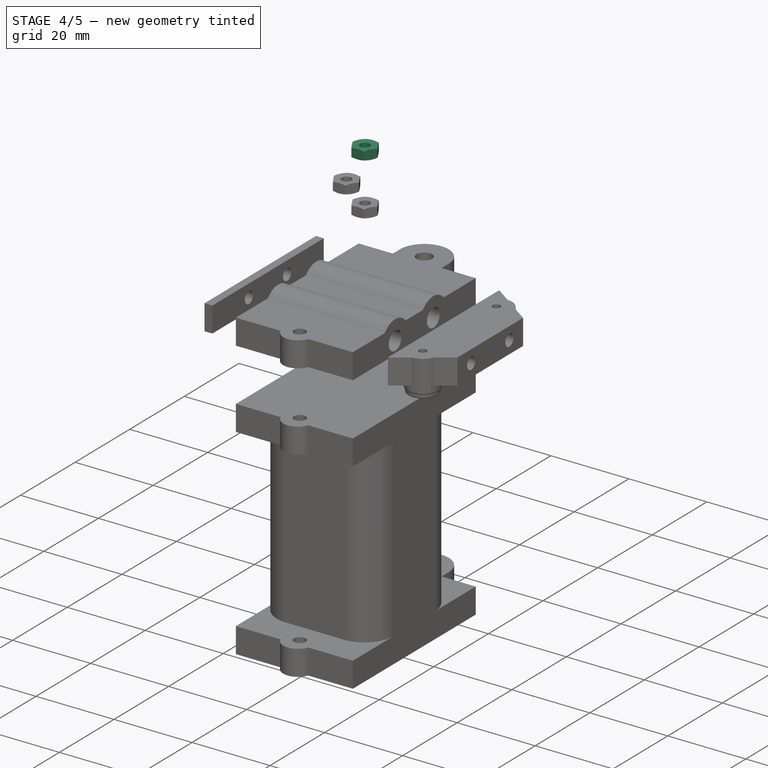
[diagram: stage 4 of 5 — iso view after this stage's code; geometry added in this stage tinted green]
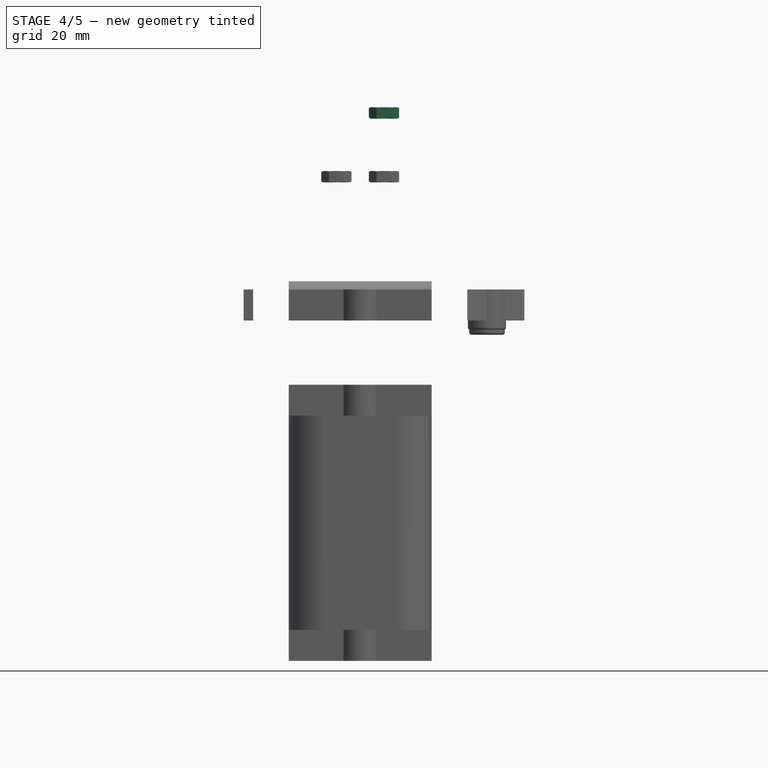
[diagram: stage 4 of 5 — front view after this stage's code; geometry added in this stage tinted green]
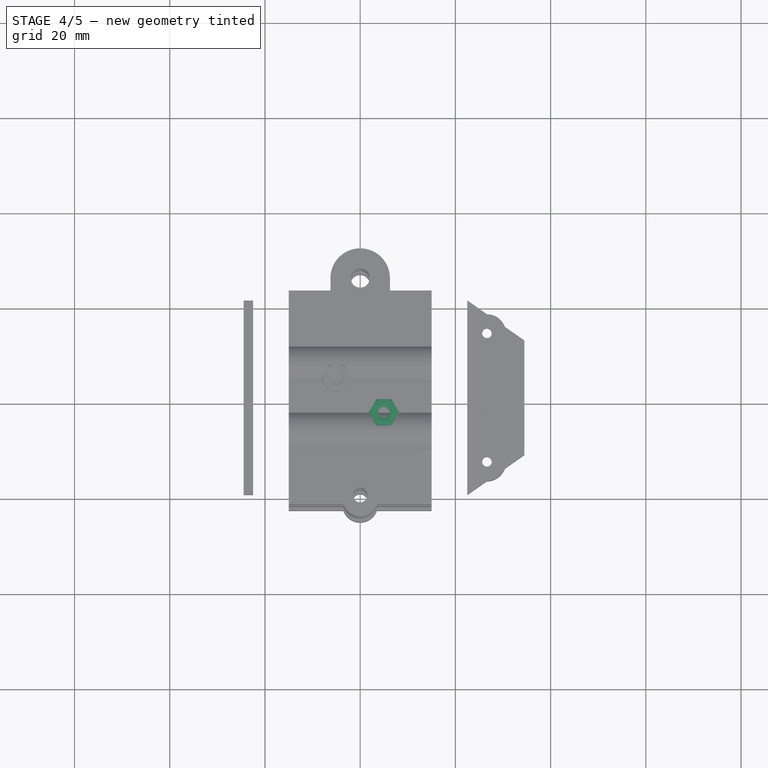
[diagram: stage 4 of 5 — top view after this stage's code; geometry added in this stage tinted green]
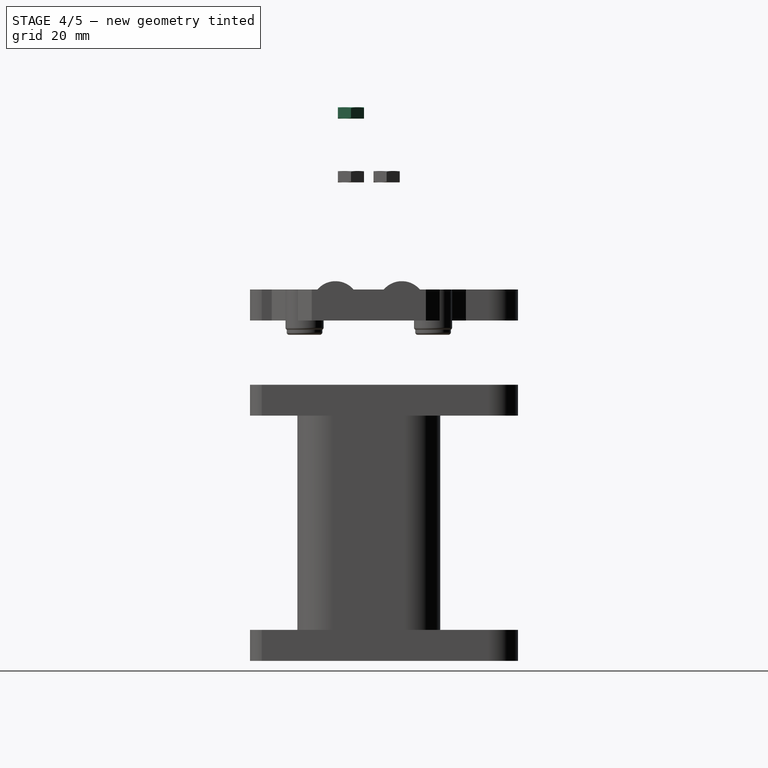
[diagram: stage 4 of 5 — right view after this stage's code; geometry added in this stage tinted green]
FEATURE [Sketcher::SketchObject] Sketch019
  ExternalGeometry = -> [Cut,Tube005]
  FullyConstrained = true
  MapMode = 5
  Placement = pos=(-5.9e-15,2e-15,-20) rot=(0,0,1;0rad)
  sketch-geometry (4):
    g0: Circle CenterX=26.625 CenterY=13.5 CenterZ=0 NormalX=0 NormalY=0 NormalZ=1 AngleXU=0 Radius=4
    g1: Circle CenterX=26.625 CenterY=13.5 CenterZ=0 NormalX=0 NormalY=0 NormalZ=1 AngleXU=0 Radius=1.5
    g2: Circle CenterX=26.625 CenterY=-13.5 CenterZ=0 NormalX=0 NormalY=0 NormalZ=1 AngleXU=0 Radius=4
    g3: Circle CenterX=26.625 CenterY=-13.5 CenterZ=0 NormalX=0 NormalY=0 NormalZ=1 AngleXU=0 Radius=1.5
  constraints (13):
    c: Diameter(g0) = 8
    c: DistanceY(g-4,g0) = 0
    c: Coincident(g1,g0)
    c: PointOnObject(g-4,g1)
    c: PointOnObject(g-3,g1)
    c: Diameter(g2) = 8
    c: Coincident(g3,g2)
    c: PointOnObject(g-4,g3)
    c: PointOnObject(g-3,g3)
    c: DistanceY(g2,g-3) = 0
    c: DistanceX(g0) = 26.625
    c: DistanceY(g0) = 13.5
    c: Diameter(g-5) = 4
FEATURE [Part::Extrusion] Extrude012
  Base = -> Sketch019
  Dir = (0,0,1)
  DirMode = 2
  FaceMakerClass = Part::FaceMakerBullseye
  LengthFwd = 10
  LengthRev = 10
  Solid = true
  Symmetric = false
FEATURE [Sketcher::SketchObject] Sketch020
  FullyConstrained = true
  MapMode = 5
  Placement = pos=(34.5,0,-8e-15) rot=(0.57735,0.57735,0.57735;2.0944rad)
  sketch-geometry (9):
    g0: LineSegment StartX=12 StartY=-21.5 StartZ=0 EndX=12 EndY=-15 EndZ=0
    g1: LineSegment StartX=12 StartY=-15 StartZ=0 EndX=-12 EndY=-15 EndZ=0
    g2: LineSegment StartX=-12 StartY=-15 StartZ=0 EndX=-12 EndY=-21.5 EndZ=0
    g3: LineSegment StartX=-12 StartY=-21.5 StartZ=0 EndX=12 EndY=-21.5 EndZ=0
    g4: GeomPoint X=0 Y=-18.25 Z=0
    g5: LineSegment StartX=0 StartY=-18.25 StartZ=0 EndX=-7 EndY=-18.25 EndZ=0
    g6: LineSegment StartX=0 StartY=-18.25 StartZ=0 EndX=7 EndY=-18.25 EndZ=0
    g7: Circle CenterX=-7 CenterY=-18.25 CenterZ=0 NormalX=0 NormalY=0 NormalZ=1 AngleXU=0 Radius=1.5
    g8: Circle CenterX=7 CenterY=-18.25 CenterZ=0 NormalX=0 NormalY=0 NormalZ=1 AngleXU=0 Radius=1.5
  constraints (23):
    c: Coincident(g0,g1)
    c: Coincident(g1,g2)
    c: Coincident(g2,g3)
    c: Coincident(g3,g0)
    c: Horizontal(g1)
    c: Horizontal(g3)
    c: Vertical(g0)
    c: Vertical(g2)
    c: Symmetric(g1,g0,g4)
    c: Coincident(g5,g4)
    c: Horizontal(g5)
    c: Coincident(g6,g4)
    c: Horizontal(g6)
    c: Coincident(g7,g5)
    c: Coincident(g8,g6)
    c: Equal(g6,g5)
    c: Equal(g7,g8)
    c: Diameter(g7) = 3
    c: DistanceX(g8,g0) = 5
    c: DistanceY(g0,g0) = 6.5
    c: PointOnObject(g4,g-2)
    c: DistanceX(g6,g6) = 7
    c: DistanceY(g0) = -15
FEATURE [Part::Extrusion] Extrude013
  Base = -> Sketch020
  Dir = (1,0,0)
  DirMode = 2
  FaceMakerClass = Part::FaceMakerBullseye
  LengthFwd = 0
  LengthRev = 100
  Solid = true
  Symmetric = false
FEATURE [Sketcher::SketchObject] Sketch022
  FullyConstrained = true
  Placement = pos=(0,0,-15) rot=(1,0,0;3.14159rad)
  sketch-geometry (4):
    g0: LineSegment StartX=-22.5 StartY=20.3994 StartZ=0 EndX=-22.5 EndY=-20.3994 EndZ=0
    g1: LineSegment StartX=-34.5 StartY=-11.9969 StartZ=0 EndX=-34.5 EndY=11.9969 EndZ=0
    g2: LineSegment StartX=-34.5 StartY=11.9969 StartZ=0 EndX=-22.5 EndY=20.3994 EndZ=0
    g3: LineSegment StartX=-34.5 StartY=-11.9969 StartZ=0 EndX=-22.5 EndY=-20.3994 EndZ=0
  constraints (12):
    c: Coincident(g1,g3)
    c: Coincident(g1,g2)
    c: Coincident(g0,g3)
    c: Coincident(g0,g2)
    c: DistanceX(g1) = -34.5
    c: DistanceY(g1) = 11.9969
    c: Equal(g3,g2)
    c: Vertical(g1)
    c: DistanceX(g0) = -22.5
    c: DistanceY(g0) = 20.3994
    c: Vertical(g0)
    c: DistanceY(g0,g0) = 40.7988
FEATURE [Part::Extrusion] Extrude014
  Base = -> Sketch022
  Dir = (0,0,-1)
  DirMode = 2
  FaceMakerClass = Part::FaceMakerBullseye
  LengthFwd = 6.5
  LengthRev = 0
  Solid = true
  Symmetric = false
FEATURE [Part::Mirroring] Part__Mirroring001  label="Extrude014 (Mirror #2)"
  Base = (0,0,0)
  Normal = (1,0,0)
  Source = -> Extrude014
FEATURE [Sketcher::SketchObject] Sketch035
  FullyConstrained = true
  MapMode = 5
  Placement = pos=(34.5,0,-8e-15) rot=(0.57735,0.57735,0.57735;2.0944rad)
  sketch-geometry (9):
    g0: LineSegment StartX=11.9969 StartY=-21.5 StartZ=0 EndX=11.9969 EndY=-15 EndZ=0
    g1: LineSegment StartX=11.9969 StartY=-15 StartZ=0 EndX=-11.9969 EndY=-15 EndZ=0
    g2: LineSegment StartX=-11.9969 StartY=-15 StartZ=0 EndX=-11.9969 EndY=-21.5 EndZ=0
    g3: LineSegment StartX=-11.9969 StartY=-21.5 StartZ=0 EndX=11.9969 EndY=-21.5 EndZ=0
    g4: GeomPoint X=-1e-16 Y=-18.25 Z=0
    g5: LineSegment StartX=-1e-16 StartY=-18.25 StartZ=0 EndX=-6.99689 EndY=-18.25 EndZ=0
    g6: LineSegment StartX=-1e-16 StartY=-18.25 StartZ=0 EndX=6.99689 EndY=-18.25 EndZ=0
    g7: Circle CenterX=-6.99689 CenterY=-18.25 CenterZ=0 NormalX=0 NormalY=0 NormalZ=1 AngleXU=0 Radius=2.35
    g8: Circle CenterX=6.99689 CenterY=-18.25 CenterZ=0 NormalX=0 NormalY=0 NormalZ=1 AngleXU=0 Radius=2.35
  constraints (23):
    c: Coincident(g0,g1)
    c: Coincident(g1,g2)
    c: Coincident(g2,g3)
    c: Coincident(g3,g0)
    c: Horizontal(g1)
    c: Horizontal(g3)
    c: Vertical(g0)
    c: Vertical(g2)
    c: Symmetric(g1,g0,g4)
    c: Coincident(g5,g4)
    c: Horizontal(g5)
    c: Coincident(g6,g4)
    c: Horizontal(g6)
    c: Coincident(g7,g5)
    c: Coincident(g8,g6)
    c: Equal(g6,g5)
    c: Equal(g7,g8)
    c: Diameter(g7) = 4.7
    c: DistanceX(g8,g0) = 5
    c: DistanceX(g0) = 11.9969
    c: DistanceY(g0) = -15
    c: DistanceX(g2) = -11.9969
    c: DistanceY(g2) = -21.5
FEATURE [Part::Extrusion] Extrude026
  Base = -> Sketch035
  Dir = (1,0,0)
  DirMode = 2
  FaceMakerClass = Part::FaceMakerBullseye
  LengthFwd = 0
  LengthRev = 25
  Solid = true
  Symmetric = false
FEATURE [Sketcher::SketchObject] Sketch036
  ExternalGeometry = -> [Fillet014,Fusion005,Fusion006]
  FullyConstrained = true
  sketch-geometry (14):
    g0: LineSegment StartX=-15 StartY=22.5 StartZ=0 EndX=-6.25 EndY=22.5 EndZ=0
    g1: LineSegment StartX=15 StartY=22.5 StartZ=0 EndX=15 EndY=-22.5 EndZ=0
    g2: LineSegment StartX=15 StartY=-22.5 StartZ=0 EndX=3.5222 EndY=-22.5 EndZ=0
    g3: LineSegment StartX=-15 StartY=-22.5 StartZ=0 EndX=-15 EndY=22.5 EndZ=0
    g4: ArcOfCircle CenterX=0 CenterY=25.1004 CenterZ=0 NormalX=0 NormalY=0 NormalZ=1 AngleXU=0 Radius=6.25 StartAngle=1e-16 EndAngle=3.14159
    g5: LineSegment StartX=-6.25 StartY=25.1004 StartZ=0 EndX=-6.25 EndY=22.5 EndZ=0
    g6: LineSegment StartX=6.25 StartY=25.1004 StartZ=0 EndX=6.25 EndY=22.5 EndZ=0
    g7: LineSegment StartX=6.25 StartY=22.5 StartZ=0 EndX=15 EndY=22.5 EndZ=0
    g8: Circle CenterX=0 CenterY=25.1004 CenterZ=0 NormalX=0 NormalY=0 NormalZ=1 AngleXU=0 Radius=2
    g9: Circle CenterX=0 CenterY=-20.5 CenterZ=0 NormalX=0 NormalY=0 NormalZ=1 AngleXU=0 Radius=1.5
    g10: ArcOfCircle CenterX=0 CenterY=-21.2129 CenterZ=0 NormalX=0 NormalY=0 NormalZ=1 AngleXU=0 Radius=3.75 StartAngle=3.49194 EndAngle=5.93284
    g11: LineSegment StartX=-3.5222 StartY=-22.5 StartZ=0 EndX=-15 EndY=-22.5 EndZ=0
    g12: LineSegment StartX=-6.25 StartY=22.5 StartZ=0 EndX=6.25 EndY=22.5 EndZ=0
    g13: LineSegment StartX=-3.5222 StartY=-22.5 StartZ=0 EndX=3.5222 EndY=-22.5 EndZ=0
  constraints (36):
    c: Coincident(g1,g2)
    c: Coincident(g3,g11)
    c: Horizontal(g2)
    c: Horizontal(g11)
    c: Horizontal(g0)
    c: Horizontal(g7)
    c: Vertical(g6)
    c: Vertical(g5)
    c: Vertical(g1)
    c: Vertical(g3)
    c: PointOnObject(g10,g-2)
    c: Coincident(g9,g-6)
    c: Diameter(g9) = 3
    c: PointOnObject(g10,g-5)
    c: Equal(g10,g-5)
    c: PointOnObject(g2,g11)
    c: Coincident(g2,g10)
    c: Equal(g2,g11)
    c: Coincident(g11,g10)
    c: Coincident(g1,g7)
    c: Diameter(g8) = 4
    c: Tangent(g4,g6) = 1.5708
    c: Coincident(g0,g5)
    c: Coincident(g7,g6)
    c: Equal(g6,g5)
    c: PointOnObject(g-4,g0)
    c: Coincident(g3,g0)
    c: Coincident(g-7,g3)
    c: Tangent(g4,g5) = -1.5708
    c: Equal(g-9,g4)
    c: Coincident(g4,g-9)
    c: Coincident(g4,g8)
    c: Coincident(g12,g0)
    c: Coincident(g12,g7)
    c: Coincident(g13,g11)
    c: Coincident(g13,g2)
FEATURE [Sketcher::SketchObject] Sketch037
  FullyConstrained = true
  MapMode = 5
  Placement = pos=(34.5,0,-8e-15) rot=(0.57735,0.57735,0.57735;2.0944rad)
  sketch-geometry (9):
    g0: LineSegment StartX=11.9969 StartY=-21.5 StartZ=0 EndX=11.9969 EndY=-15 EndZ=0
    g1: LineSegment StartX=11.9969 StartY=-15 StartZ=0 EndX=-11.9969 EndY=-15 EndZ=0
    g2: LineSegment StartX=-11.9969 StartY=-15 StartZ=0 EndX=-11.9969 EndY=-21.5 EndZ=0
    g3: LineSegment StartX=-11.9969 StartY=-21.5 StartZ=0 EndX=11.9969 EndY=-21.5 EndZ=0
    g4: GeomPoint X=-1e-16 Y=-18.25 Z=0
    g5: LineSegment StartX=-1e-16 StartY=-18.25 StartZ=0 EndX=-6.99689 EndY=-18.25 EndZ=0
    g6: LineSegment StartX=-1e-16 StartY=-18.25 StartZ=0 EndX=6.99689 EndY=-18.25 EndZ=0
    g7: Circle CenterX=-6.99689 CenterY=-18.25 CenterZ=0 NormalX=0 NormalY=0 NormalZ=1 AngleXU=0 Radius=2.35
    g8: Circle CenterX=6.99689 CenterY=-18.25 CenterZ=0 NormalX=0 NormalY=0 NormalZ=1 AngleXU=0 Radius=2.35
  constraints (23):
    c: Coincident(g0,g1)
    c: Coincident(g1,g2)
    c: Coincident(g2,g3)
    c: Coincident(g3,g0)
    c: Horizontal(g1)
    c: Horizontal(g3)
    c: Vertical(g0)
    c: Vertical(g2)
    c: Symmetric(g1,g0,g4)
    c: Coincident(g5,g4)
    c: Horizontal(g5)
    c: Coincident(g6,g4)
    c: Horizontal(g6)
    c: Coincident(g7,g5)
    c: Coincident(g8,g6)
    c: Equal(g6,g5)
    c: Equal(g7,g8)
    c: Diameter(g7) = 4.7
    c: DistanceX(g8,g0) = 5
    c: DistanceX(g0) = 11.9969
    c: DistanceY(g0) = -15
    c: DistanceX(g2) = -11.9969
    c: DistanceY(g2) = -21.5
FEATURE [Part::Extrusion] Extrude028
  Base = -> Sketch037
  Dir = (1,0,0)
  DirMode = 2
  FaceMakerClass = Part::FaceMakerBullseye
  LengthFwd = 0
  LengthRev = 25
  Placement = pos=(-44,0,0) rot=(0,0,1;0rad)
  Solid = true
  Symmetric = false
FEATURE [Part::MultiFuse] Fusion011
  Shapes = -> [Extrude028,Extrude026]
FEATURE [Part::Extrusion] Extrude027
  Base = -> Sketch036
  Dir = (0,0,1)
  DirMode = 2
  FaceMakerClass = Part::FaceMakerBullseye
  LengthFwd = 0
  LengthRev = 6.5
  Placement = pos=(0,0,-14.999) rot=(0,0,1;0rad)
  Solid = true
  Symmetric = false
FEATURE [Sketcher::SketchObject] Sketch038
  ExternalGeometry = -> [Fusion004]
  FullyConstrained = false
  MapMode = 5
  Placement = pos=(-15,0,-14.999) rot=(0.57735,-0.57735,-0.57735;2.0944rad)
  Support = -> [Extrude027]
  sketch-geometry (9):
    g0: ArcOfCircle CenterX=-6.9336 CenterY=-3.251 CenterZ=0 NormalX=0 NormalY=0 NormalZ=1 AngleXU=0 Radius=5 StartAngle=0.707848 EndAngle=2.43375
    g1: LineSegment StartX=-10.7324 StartY=-9e-16 StartZ=0 EndX=-3.13478 EndY=-9e-16 EndZ=0
    g2: ArcOfCircle CenterX=6.99689 CenterY=-3.251 CenterZ=0 NormalX=0 NormalY=0 NormalZ=1 AngleXU=0 Radius=5 StartAngle=0.707848 EndAngle=2.43375
    g3: LineSegment StartX=10.7957 StartY=4e-16 StartZ=0 EndX=3.19807 EndY=4e-16 EndZ=0
    g4: LineSegment StartX=11.9969 StartY=-6.501 StartZ=0 EndX=11.9969 EndY=-0.001 EndZ=0
    g5: LineSegment StartX=11.9969 StartY=-0.001 StartZ=0 EndX=-11.9969 EndY=-0.001 EndZ=0
    g6: LineSegment StartX=-11.9969 StartY=-0.001 StartZ=0 EndX=-11.9969 EndY=-6.501 EndZ=0
    g7: LineSegment StartX=-11.9969 StartY=-6.501 StartZ=0 EndX=11.9969 EndY=-6.501 EndZ=0
    g8: GeomPoint X=0 Y=-3.251 Z=0
  constraints (24):
    c: Coincident(g1,g0)
    c: Coincident(g1,g0)
    c: Horizontal(g1)
    c: PointOnObject(g0,g-1)
    c: Coincident(g3,g2)
    c: Coincident(g3,g2)
    c: Horizontal(g3)
    c: PointOnObject(g2,g-1)
    c: Equal(g2,g0)
    c: Diameter(g2) = 10
    c: Coincident(g4,g5)
    c: Coincident(g5,g6)
    c: Coincident(g6,g7)
    c: Coincident(g7,g4)
    c: Horizontal(g5)
    c: Horizontal(g7)
    c: Vertical(g4)
    c: Vertical(g6)
    c: Symmetric(g5,g4,g8)
    c: PointOnObject(g8,g-2)
    c: Coincident(g5,g-3)
    c: PointOnObject(g-3,g7)
    c: DistanceY(g2,g8) = 0
    c: DistanceY(g8,g0) = 0
FEATURE [Part::Extrusion] Extrude029
  Base = -> Sketch038
  Dir = (-1,0,0)
  DirMode = 2
  FaceMakerClass = Part::FaceMakerBullseye
  LengthFwd = 0
  LengthRev = 30
  Solid = true
  Symmetric = false
FEATURE [Part::Cut] Cut009
  Base = -> Extrude027
  Tool = -> Fusion011
FEATURE [Part::MultiFuse] Fusion012
  Shapes = -> [Cut009,Extrude029]
FEATURE [Sketcher::SketchObject] Sketch039
  ExternalGeometry = -> [Cut008]
  FullyConstrained = true
  MapMode = 5
  Placement = pos=(0,0,-14.999) rot=(0,0,1;0rad)
  Support = -> [Fusion012]
  sketch-geometry (11):
    g0: LineSegment StartX=-5 StartY=3.75 StartZ=0 EndX=5 EndY=3.75 EndZ=0
    g1: LineSegment StartX=5 StartY=3.75 StartZ=0 EndX=5 EndY=-3.75 EndZ=0
    g2: LineSegment StartX=5 StartY=-3.75 StartZ=0 EndX=-5 EndY=-3.75 EndZ=0
    g3: LineSegment StartX=-5 StartY=-3.75 StartZ=0 EndX=-5 EndY=3.75 EndZ=0
    g4: LineSegment StartX=-3.75 StartY=-5 StartZ=0 EndX=-3.75 EndY=5 EndZ=0
    g5: LineSegment StartX=-3.75 StartY=5 StartZ=0 EndX=3.75 EndY=5 EndZ=0
    g6: LineSegment StartX=3.75 StartY=5 StartZ=0 EndX=3.75 EndY=-5 EndZ=0
    g7: LineSegment StartX=3.75 StartY=-5 StartZ=0 EndX=-3.75 EndY=-5 EndZ=0
    g8: GeomPoint X=-4e-16 Y=0 Z=0
    g9: Circle CenterX=3.75 CenterY=5 CenterZ=0 NormalX=0 NormalY=0 NormalZ=1 AngleXU=0 Radius=3.25
    g10: Circle CenterX=-3.75 CenterY=-5 CenterZ=0 NormalX=0 NormalY=0 NormalZ=1 AngleXU=0 Radius=3.25
  constraints (28):
    c: Coincident(g0,g1)
    c: Coincident(g1,g2)
    c: Coincident(g2,g3)
    c: Coincident(g3,g0)
    c: Horizontal(g0)
    c: Horizontal(g2)
    c: Vertical(g1)
    c: Vertical(g3)
    c: Coincident(g0,g-3)
    c: Coincident(g1,g-4)
    c: DistanceX(g2,g2) = 10
    c: DistanceY(g1,g1) = 7.5
    c: Coincident(g4,g5)
    c: Coincident(g5,g6)
    c: Coincident(g6,g7)
    c: Coincident(g7,g4)
    c: Horizontal(g5)
    c: Horizontal(g7)
    c: Vertical(g4)
    c: Vertical(g6)
    c: Symmetric(g5,g4,g8)
    c: Coincident(g8,g-1)
    c: Equal(g2,g6)
    c: Equal(g1,g5)
    c: Coincident(g9,g5)
    c: Coincident(g10,g4)
    c: Equal(g10,g9)
    c: Diameter(g10) = 6.5
FEATURE [Part::Extrusion] Extrude030
  Base = -> Sketch039
  Dir = (0,0,1)
  DirMode = 2
  FaceMakerClass = Part::FaceMakerBullseye
  LengthFwd = 10
  LengthRev = 0
  Solid = true
  Symmetric = false
FEATURE [Sketcher::SketchObject] Sketch040
  ExternalGeometry = -> [Cut008]
  FullyConstrained = true
  MapMode = 5
  Placement = pos=(0,0,-14.999) rot=(0,0,1;0rad)
  Support = -> [Fusion012]
  sketch-geometry (11):
    g0: LineSegment StartX=-5 StartY=3.75 StartZ=0 EndX=5 EndY=3.75 EndZ=0
    g1: LineSegment StartX=5 StartY=3.75 StartZ=0 EndX=5 EndY=-3.75 EndZ=0
    g2: LineSegment StartX=5 StartY=-3.75 StartZ=0 EndX=-5 EndY=-3.75 EndZ=0
    g3: LineSegment StartX=-5 StartY=-3.75 StartZ=0 EndX=-5 EndY=3.75 EndZ=0
    g4: LineSegment StartX=-3.75 StartY=-5 StartZ=0 EndX=-3.75 EndY=5 EndZ=0
    g5: LineSegment StartX=-3.75 StartY=5 StartZ=0 EndX=3.75 EndY=5 EndZ=0
    g6: LineSegment StartX=3.75 StartY=5 StartZ=0 EndX=3.75 EndY=-5 EndZ=0
    g7: LineSegment StartX=3.75 StartY=-5 StartZ=0 EndX=-3.75 EndY=-5 EndZ=0
    g8: GeomPoint X=-4e-16 Y=0 Z=0
    g9: Circle CenterX=-3.75 CenterY=-5 CenterZ=0 NormalX=0 NormalY=0 NormalZ=1 AngleXU=0 Radius=1.5
    g10: Circle CenterX=3.75 CenterY=5 CenterZ=0 NormalX=0 NormalY=0 NormalZ=1 AngleXU=0 Radius=1.5
  constraints (28):
    c: Coincident(g0,g1)
    c: Coincident(g1,g2)
    c: Coincident(g2,g3)
    c: Coincident(g3,g0)
    c: Horizontal(g0)
    c: Horizontal(g2)
    c: Vertical(g1)
    c: Vertical(g3)
    c: Coincident(g0,g-3)
    c: Coincident(g1,g-4)
    c: DistanceX(g2,g2) = 10
    c: DistanceY(g1,g1) = 7.5
    c: Coincident(g4,g5)
    c: Coincident(g5,g6)
    c: Coincident(g6,g7)
    c: Coincident(g7,g4)
    c: Horizontal(g5)
    c: Horizontal(g7)
    c: Vertical(g4)
    c: Vertical(g6)
    c: Symmetric(g5,g4,g8)
    c: Coincident(g8,g-1)
    c: Equal(g2,g6)
    c: Equal(g1,g5)
    c: Coincident(g9,g4)
    c: Coincident(g10,g5)
    c: Equal(g10,g9)
    c: Diameter(g10) = 3
FEATURE [Part::Extrusion] Extrude031
  Base = -> Sketch040
  Dir = (0,0,1)
  DirMode = 2
  FaceMakerClass = Part::FaceMakerBullseye
  LengthFwd = 0
  LengthRev = 20
  Solid = true
  Symmetric = false
FEATURE [Part::MultiFuse] Fusion013
  Shapes = -> [Extrude030,Extrude031]
FEATURE [Part::Cut] Cut010
  Base = -> Fusion012
  Tool = -> Fusion013
FEATURE [Part::Fillet] Fillet015  label="base plate w/ boden actuator mounting"
  Base = -> Cut010
  Edges = 2 edges r=0.5: [Edge59,Edge61]
  Placement = pos=(0,0,44.8) rot=(0,0,-1;1.5708rad)
FEATURE [Part::FeaturePython] Nut007  label="M3-Nut051"  # Fasteners workbench fastener (typed FeaturePython)
  Placement = pos=(5,-3.75,23.301) rot=(1,0,0;3.14159rad)
  baseObject = -> Fillet015 [Edge60]
  diameter = 4
  invert = false
  leftHanded = false
  matchOuter = false
  offset = 0
  thread = false
  type = 25
FEATURE [App::DocumentObjectGroup] Group001  label="fastners"
  Group = -> [Screw,Screw008,Screw001,Screw002,Screw003,Screw004,Screw006,Screw007,Insert,Insert001,Insert002,Insert003,Nut,Nut001,Nut002,Nut003,Screw013,Screw014,Screw015,Nut004,Nut005,Nut006,Nut007]
FEATURE [Sketcher::SketchObject] Sketch041
  FullyConstrained = false
  Placement = pos=(0,0,0) rot=(1,0,0;1.5708rad)
  sketch-geometry (13):
    g0: LineSegment StartX=26.625 StartY=-15 StartZ=0 EndX=26.625 EndY=-27 EndZ=0
    g1: LineSegment StartX=22.625 StartY=-15 StartZ=0 EndX=22.625 EndY=-23.5 EndZ=0
    g2: LineSegment StartX=22.625 StartY=-23.5 StartZ=0 EndX=24.025 EndY=-23.5 EndZ=0
    g3: LineSegment StartX=24.025 StartY=-23.5 StartZ=0 EndX=25.025 EndY=-21.3333 EndZ=0
    g4: LineSegment StartX=25.025 StartY=-21.3333 StartZ=0 EndX=24.025 EndY=-21.3333 EndZ=0
    g5: LineSegment StartX=24.025 StartY=-21.3333 StartZ=0 EndX=25.025 EndY=-19.1667 EndZ=0
    g6: LineSegment StartX=25.025 StartY=-19.1667 StartZ=0 EndX=24.025 EndY=-19.1667 EndZ=0
    g7: LineSegment StartX=24.025 StartY=-23.5 StartZ=0 EndX=24.025 EndY=-17 EndZ=0
    g8: LineSegment StartX=24.025 StartY=-19.1667 StartZ=0 EndX=25.025 EndY=-17 EndZ=0
    g9: LineSegment StartX=25.025 StartY=-17 StartZ=0 EndX=24.025 EndY=-17 EndZ=0
    g10: LineSegment StartX=25.025 StartY=-17 StartZ=0 EndX=25.625 EndY=-17 EndZ=0
    g11: LineSegment StartX=25.625 StartY=-17 StartZ=0 EndX=25.625 EndY=-15 EndZ=0
    g12: LineSegment StartX=22.625 StartY=-15 StartZ=0 EndX=25.625 EndY=-15 EndZ=0
  constraints (34):
    c: Vertical(g0)
    c: Vertical(g1)
    c: Coincident(g2,g1)
    c: Horizontal(g2)
    c: Coincident(g3,g2)
    c: Coincident(g4,g3)
    c: Horizontal(g4)
    c: Coincident(g5,g4)
    c: Equal(g3,g5)
    c: Coincident(g6,g5)
    c: Horizontal(g6)
    c: Equal(g4,g6)
    c: Coincident(g7,g2)
    c: Vertical(g7)
    c: PointOnObject(g4,g7)
    c: DistanceX(g1,g0) = 4
    c: DistanceX(g3,g0) = 1.6
    c: Coincident(g8,g6)
    c: Coincident(g9,g8)
    c: Horizontal(g9)
    c: Coincident(g9,g7)
    c: PointOnObject(g6,g7)
    c: Equal(g6,g9)
    c: Equal(g8,g5)
    c: Coincident(g10,g8)
    c: Horizontal(g10)
    c: Coincident(g11,g10)
    c: Vertical(g11)
    c: DistanceX(g11,g0) = 1
    c: DistanceY(g11,g11) = 2
    c: DistanceX(g4,g4) = 1
    c: Coincident(g12,g1)
    c: Coincident(g12,g11)
    c: DistanceX(g0) = 26.625
FEATURE [Part::Revolution] Revolve003
  Angle = 360
  Axis = (0,0,1)
  Base = (26.625,0,0)
  FaceMakerClass = Part::FaceMakerBullseye
  Placement = pos=(0,13.5,0) rot=(0,0,1;0rad)
  Solid = true
  Source = -> Sketch041
  Symmetric = false
FEATURE [Part::Cut] Cut011
  Base = -> Part__Mirroring001
  Tool = -> Extrude012
FEATURE [Part::Cut] Cut012
  Base = -> Cut011
  Tool = -> Extrude013
FEATURE [Part::Fillet] Fillet017
  Base = -> Revolve003
  Edges = 1 edges r=0.5: [Edge2]
FEATURE [Part::Mirroring] Part__Mirroring002  label="Fillet018 (Mirror #3)"
  Base = (0,0,0)
  Normal = (0,1,0)
  Source = -> Fillet018
FEATURE [Part::MultiFuse] Fusion014  label="boden tube bracket w/ one-way fitting"
  Shapes = -> [Part__Mirroring002,Cut012,Fillet017]
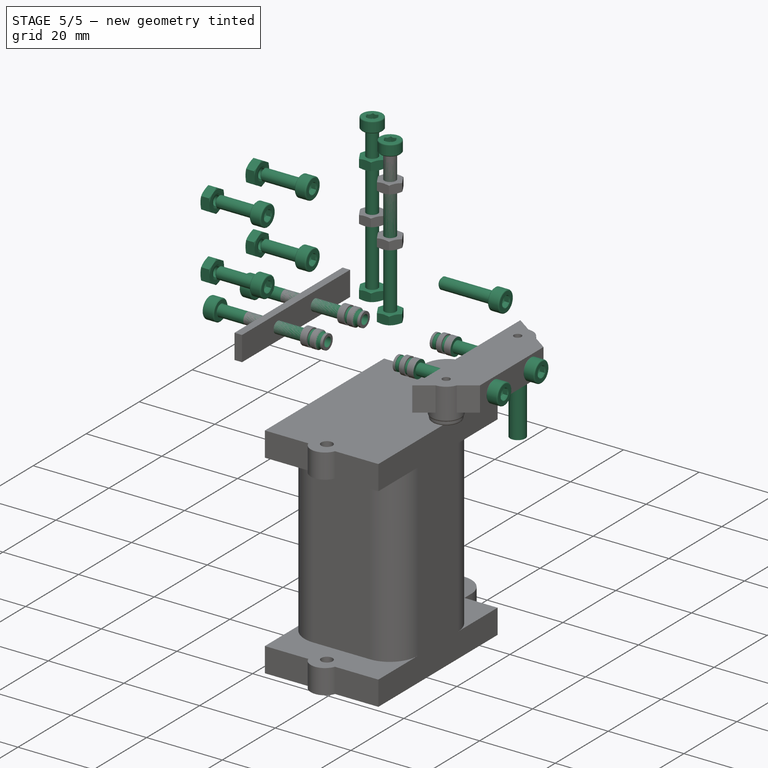
[diagram: stage 5 of 5 — iso view after this stage's code; geometry added in this stage tinted green]
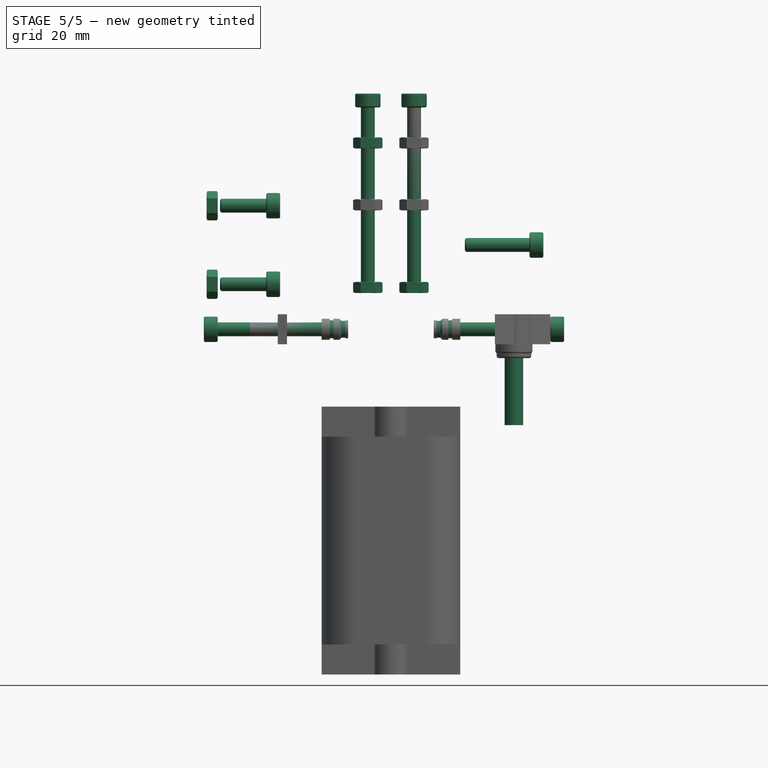
[diagram: stage 5 of 5 — front view after this stage's code; geometry added in this stage tinted green]
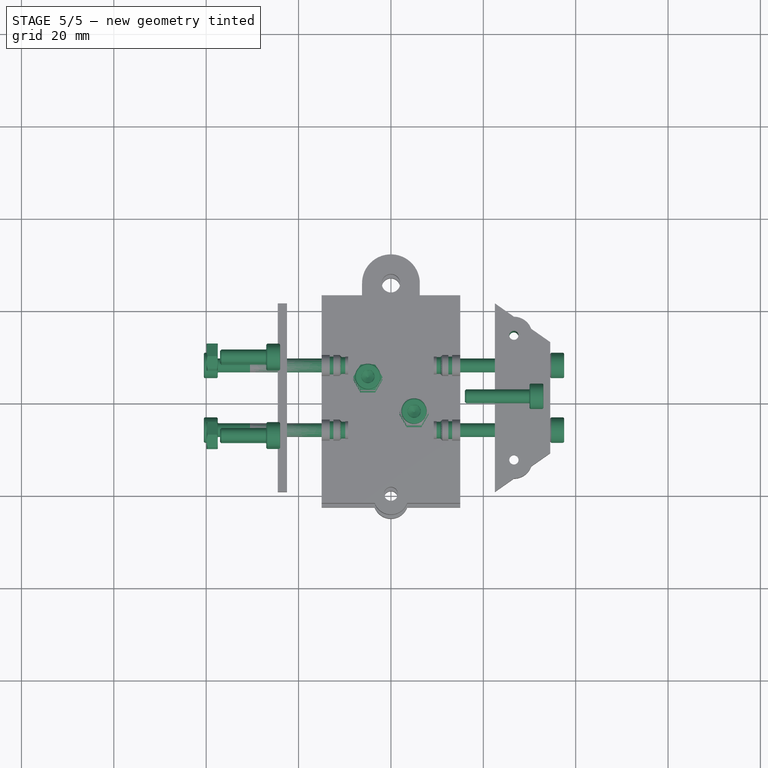
[diagram: stage 5 of 5 — top view after this stage's code; geometry added in this stage tinted green]
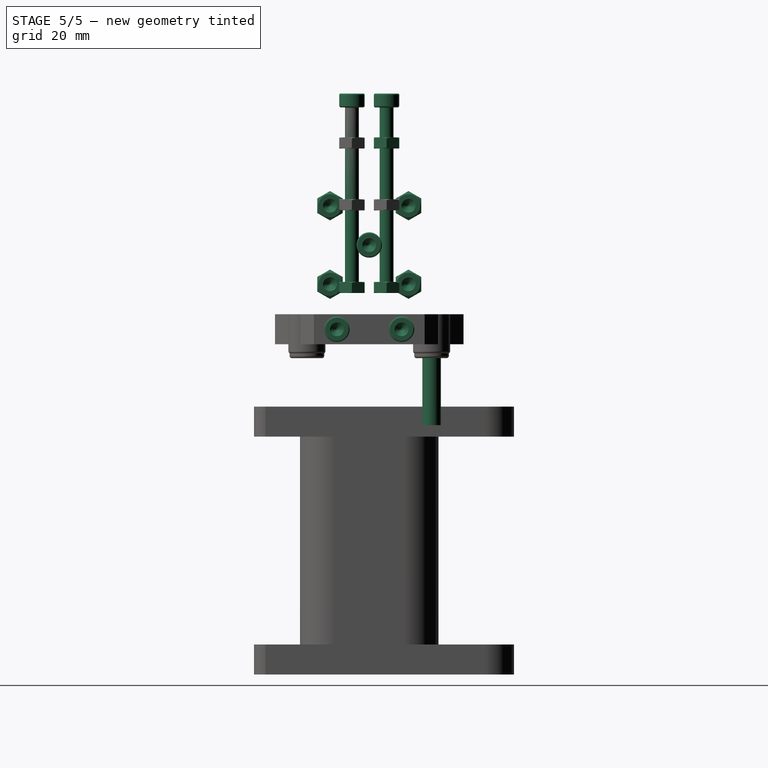
[diagram: stage 5 of 5 — right view after this stage's code; geometry added in this stage tinted green]
FEATURE [Part::FeaturePython] Screw  label="M3x14-Screw"  # Fasteners workbench fastener (typed FeaturePython)
  Placement = pos=(30,0,0) rot=(0,1,0;1.5708rad)
  baseObject = -> Fusion [Edge67]
  diameter = 4
  invert = false
  leftHanded = false
  length = 5
  lengthCustom = 14
  matchOuter = false
  offset = 1
  thread = false
  type = 48
FEATURE [Part::FeaturePython] Tube004  label="bike shift cable housing"  # WARN: FeaturePython — macro-defined, semantics opaque (R4)
  AttacherType = Attacher::AttachEngine3D
  Height = 20
  InnerRadius = 1
  OuterRadius = 2
  Placement = pos=(26.625,13.5,-19) rot=(1,0,0;3.14159rad)
FEATURE [Part::FeaturePython] Screw001  label="M3x10-Screw"  # Fasteners workbench fastener (typed FeaturePython)
  Placement = pos=(-27,-8.5,-8.5) rot=(0,1,0;1.5708rad)
  baseObject = -> Part__Feature [Edge92]
  diameter = 4
  invert = true
  leftHanded = false
  length = 3
  lengthCustom = 10
  matchOuter = false
  offset = 0
  thread = false
  type = 48
FEATURE [Part::FeaturePython] Screw002  label="M3x10-Screw001"  # Fasteners workbench fastener (typed FeaturePython)
  Placement = pos=(-27,8.5,-8.5) rot=(0,1,0;1.5708rad)
  baseObject = -> Part__Feature [Edge89]
  diameter = 4
  invert = true
  leftHanded = false
  length = 3
  lengthCustom = 10
  matchOuter = false
  offset = 0
  thread = false
  type = 48
FEATURE [Part::FeaturePython] Screw003  label="M3x10-Screw002"  # Fasteners workbench fastener (typed FeaturePython)
  Placement = pos=(-27,-8.5,8.5) rot=(0,1,0;1.5708rad)
  baseObject = -> Part__Feature [Edge95]
  diameter = 4
  invert = true
  leftHanded = false
  length = 3
  lengthCustom = 10
  matchOuter = false
  offset = 0
  thread = false
  type = 48
FEATURE [Part::FeaturePython] Screw004  label="M3x10-Screw003"  # Fasteners workbench fastener (typed FeaturePython)
  Placement = pos=(-27,8.5,8.5) rot=(0,1,0;1.5708rad)
  baseObject = -> Part__Feature [Edge98]
  diameter = 4
  invert = true
  leftHanded = false
  length = 3
  lengthCustom = 10
  matchOuter = false
  offset = 0
  thread = false
  type = 48
FEATURE [Part::FeaturePython] Screw006  label="M3x25-Screw"  # Fasteners workbench fastener (typed FeaturePython)
  Placement = pos=(-37.5,7,-18.25) rot=(0,-1,0;1.5708rad)
  baseObject = -> Fusion004 [Edge7]
  diameter = 4
  invert = false
  leftHanded = false
  length = 8
  lengthCustom = 25
  matchOuter = false
  offset = 0
  thread = false
  type = 48
FEATURE [Part::FeaturePython] Screw007  label="M3x25-Screw025"  # Fasteners workbench fastener (typed FeaturePython)
  Placement = pos=(34.5,7,-18.25) rot=(0,1,0;1.5708rad)
  diameter = 4
  invert = false
  leftHanded = false
  length = 8
  lengthCustom = 25
  matchOuter = false
  offset = 0
  thread = false
  type = 48
FEATURE [Part::FeaturePython] Screw008  label="M3x25-Screw024"  # Fasteners workbench fastener (typed FeaturePython)
  Placement = pos=(34.5,-7,-18.25) rot=(0,1,0;1.5708rad)
  diameter = 4
  invert = false
  leftHanded = false
  length = 8
  lengthCustom = 25
  matchOuter = false
  offset = 0
  thread = false
  type = 48
FEATURE [Part::FeaturePython] Insert  label="M3x5.74-Insert"  # Fasteners workbench fastener (typed FeaturePython)
  Placement = pos=(-15,-6.99689,-18.25) rot=(0,-1,0;1.5708rad)
  baseObject = -> Fusion008 [Edge15]
  diameter = 3
  externalDiam = 4.55
  invert = false
  leftHanded = false
  length = 5.74
  matchOuter = false
  offset = 0
  thread = false
  type = 0
FEATURE [Part::FeaturePython] Insert001  label="M3x5.74-Insert036"  # Fasteners workbench fastener (typed FeaturePython)
  Placement = pos=(-15,6.99689,-18.25) rot=(0,-1,0;1.5708rad)
  baseObject = -> Fusion008 [Edge16]
  diameter = 3
  externalDiam = 4.55
  invert = false
  leftHanded = false
  length = 5.74
  matchOuter = false
  offset = 0
  thread = false
  type = 0
FEATURE [Part::FeaturePython] Insert002  label="M3x5.74-Insert037"  # Fasteners workbench fastener (typed FeaturePython)
  Placement = pos=(15,6.99689,-18.25) rot=(0,1,0;1.5708rad)
  baseObject = -> Fusion008 [Edge55]
  diameter = 3
  externalDiam = 4.55
  invert = true
  leftHanded = false
  length = 5.74
  matchOuter = false
  offset = 0
  thread = false
  type = 0
FEATURE [Part::FeaturePython] Insert003  label="M3x5.74-Insert038"  # Fasteners workbench fastener (typed FeaturePython)
  Placement = pos=(15,-6.99689,-18.25) rot=(0,1,0;1.5708rad)
  baseObject = -> Fusion008 [Edge56]
  diameter = 3
  externalDiam = 4.55
  invert = true
  leftHanded = false
  length = 5.74
  matchOuter = false
  offset = 0
  thread = false
  type = 0
FEATURE [Part::FeaturePython] Nut  label="M3-Nut"  # Fasteners workbench fastener (typed FeaturePython)
  Placement = pos=(-37.5,8.5,-8.5) rot=(0,-1,0;1.5708rad)
  baseObject = -> Fusion004 [Edge20]
  diameter = 4
  invert = false
  leftHanded = false
  matchOuter = false
  offset = 0
  thread = false
  type = 25
FEATURE [Part::FeaturePython] Nut001  label="M3-Nut047"  # Fasteners workbench fastener (typed FeaturePython)
  Placement = pos=(-37.5,8.5,8.5) rot=(0,-1,0;1.5708rad)
  baseObject = -> Fusion004 [Edge21]
  diameter = 4
  invert = false
  leftHanded = false
  matchOuter = false
  offset = 0
  thread = false
  type = 25
FEATURE [Part::FeaturePython] Nut002  label="M3-Nut048"  # Fasteners workbench fastener (typed FeaturePython)
  Placement = pos=(-37.5,-8.5,-8.5) rot=(0,-1,0;1.5708rad)
  baseObject = -> Fusion004 [Edge22]
  diameter = 4
  invert = false
  leftHanded = false
  matchOuter = false
  offset = 0
  thread = false
  type = 25
FEATURE [Part::FeaturePython] Nut003  label="M3-Nut049"  # Fasteners workbench fastener (typed FeaturePython)
  Placement = pos=(-37.5,-8.5,8.5) rot=(0,-1,0;1.5708rad)
  baseObject = -> Fusion004 [Edge23]
  diameter = 4
  invert = false
  leftHanded = false
  matchOuter = false
  offset = 0
  thread = false
  type = 25
FEATURE [App::DocumentObjectGroup] Group003  label="moving part"
  Group = -> [Cut,Fusion,Cut008]
FEATURE [Part::FeaturePython] Screw013  label="M3x25-Screw026"  # Fasteners workbench fastener (typed FeaturePython)
  Placement = pos=(-37.5,-7,-18.25) rot=(0,-1,0;1.5708rad)
  baseObject = -> Fusion004 [Edge6]
  diameter = 4
  invert = false
  leftHanded = false
  length = 10
  lengthCustom = 25
  matchOuter = false
  offset = 0
  thread = false
  type = 48
FEATURE [Part::FeaturePython] Screw014  label="M3x40-Screw"  # Fasteners workbench fastener (typed FeaturePython)
  Placement = pos=(-5,3.75,29.801) rot=(0,0,1;0rad)
  baseObject = -> Fillet015 [Edge43]
  diameter = 4
  invert = false
  leftHanded = false
  length = 10
  lengthCustom = 40
  matchOuter = false
  offset = 0
  thread = false
  type = 48
FEATURE [Part::FeaturePython] Screw015  label="M3x40-Screw001"  # Fasteners workbench fastener (typed FeaturePython)
  Placement = pos=(5,-3.75,29.801) rot=(0,0,1;0rad)
  baseObject = -> Fillet015 [Edge23]
  diameter = 4
  invert = false
  leftHanded = false
  length = 10
  lengthCustom = 40
  matchOuter = false
  offset = 0
  thread = false
  type = 48
FEATURE [Part::FeaturePython] Nut004  label="M3-Nut022"  # Fasteners workbench fastener (typed FeaturePython)
  Placement = pos=(-5,3.75,-8) rot=(1,0,0;3.14159rad)
  baseObject = -> Cut008 [Edge68]
  diameter = 4
  invert = false
  leftHanded = false
  matchOuter = false
  offset = 0
  thread = false
  type = 25
FEATURE [Part::FeaturePython] Nut005  label="M3-Nut023"  # Fasteners workbench fastener (typed FeaturePython)
  Placement = pos=(5,-3.75,-8) rot=(1,0,0;3.14159rad)
  baseObject = -> Cut008 [Edge15]
  diameter = 4
  invert = false
  leftHanded = false
  matchOuter = false
  offset = 0
  thread = false
  type = 25
FEATURE [Part::FeaturePython] Nut006  label="M3-Nut050"  # Fasteners workbench fastener (typed FeaturePython)
  Placement = pos=(-5,3.75,23.301) rot=(1,0,0;3.14159rad)
  baseObject = -> Fillet015 [Edge70]
  diameter = 4
  invert = false
  leftHanded = false
  matchOuter = false
  offset = 0
  thread = false
  type = 25
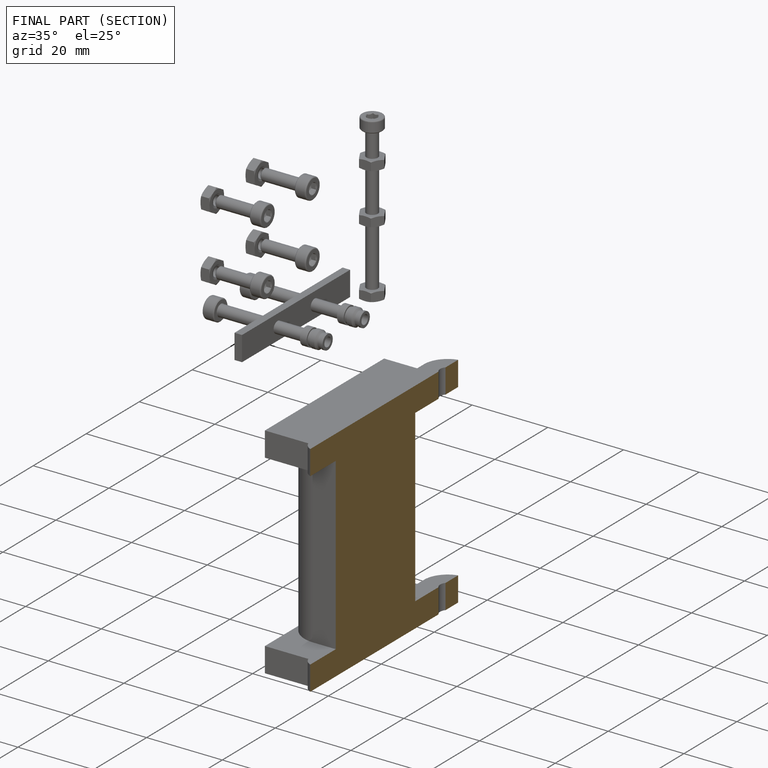
[diagram: finished part — half-section view (interior)]
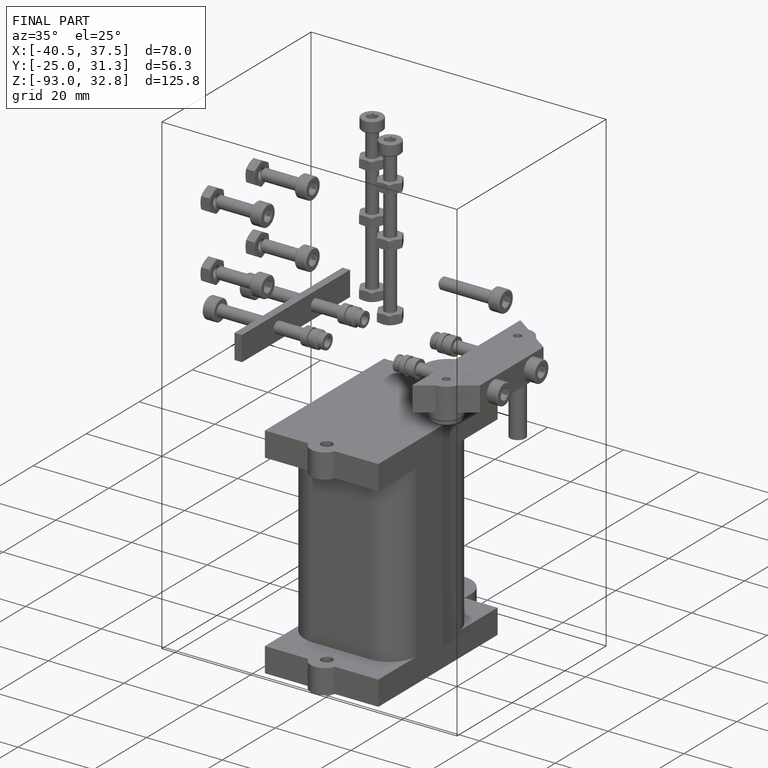
[diagram: finished part — iso view with bounding-box wireframe]
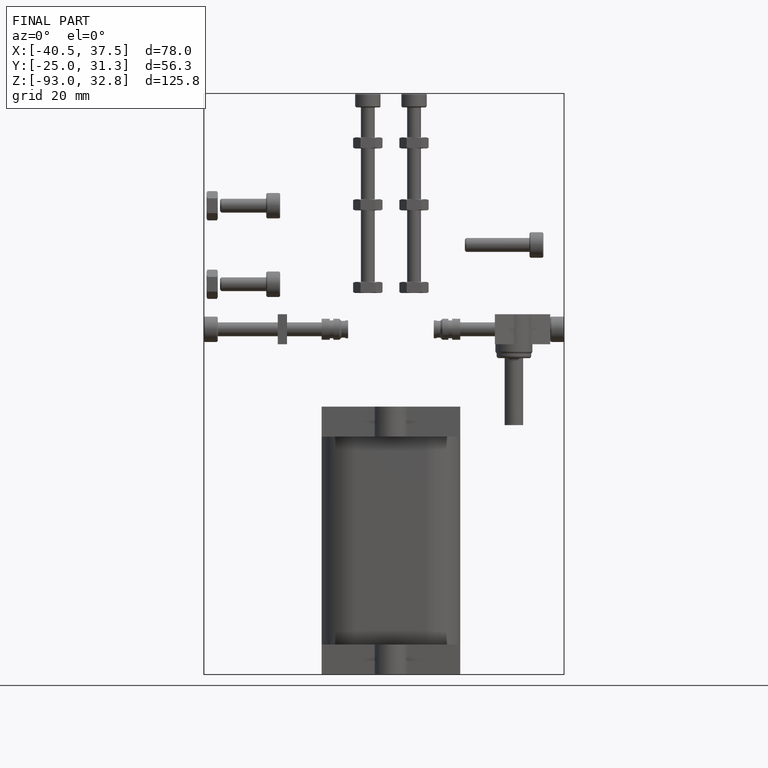
[diagram: finished part — front view with bounding-box wireframe]
